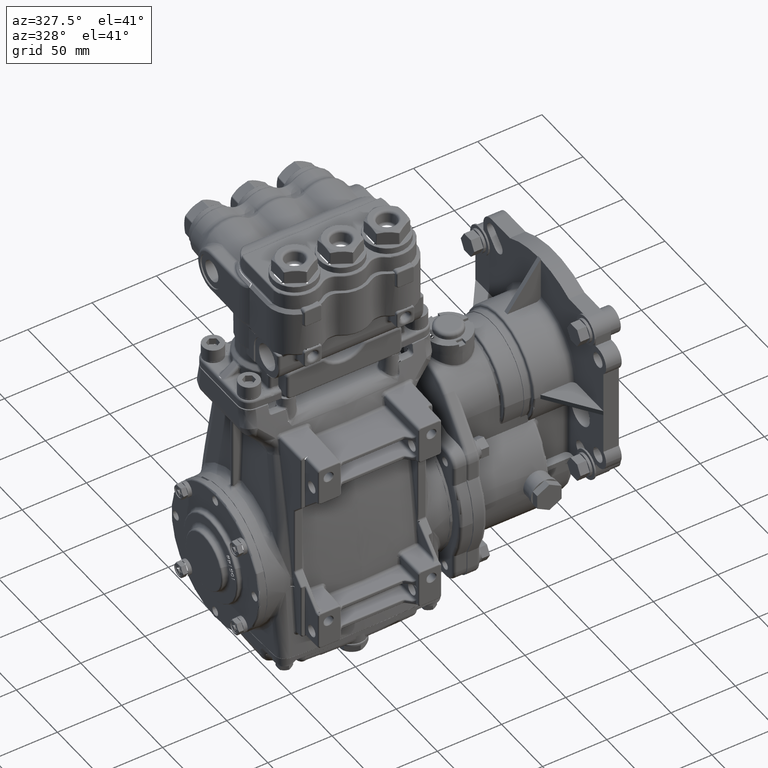
[diagram: clean part render]
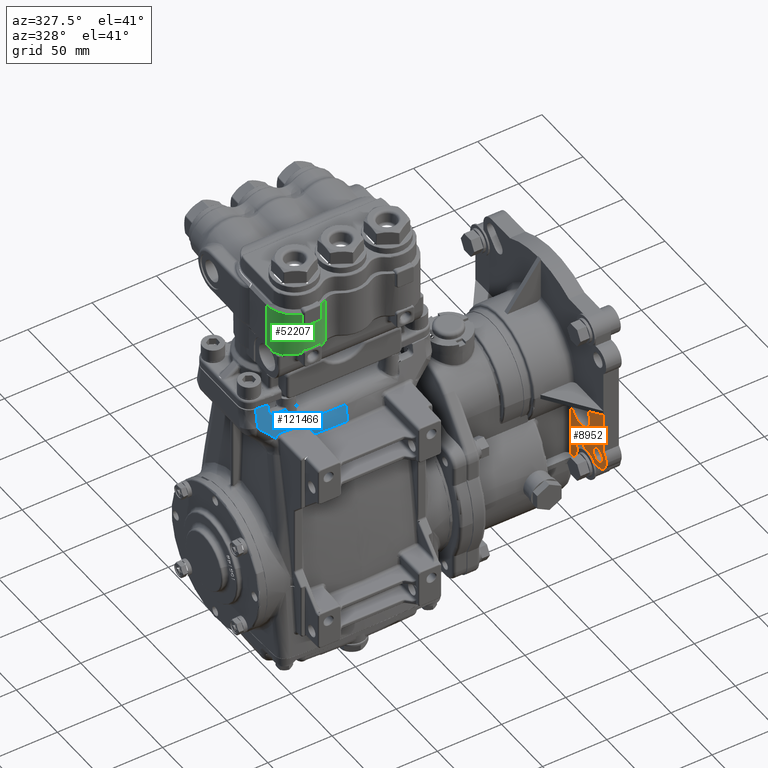
[diagram: same view with three faces highlighted in distinct colors, each labeled with its STEP entity id]
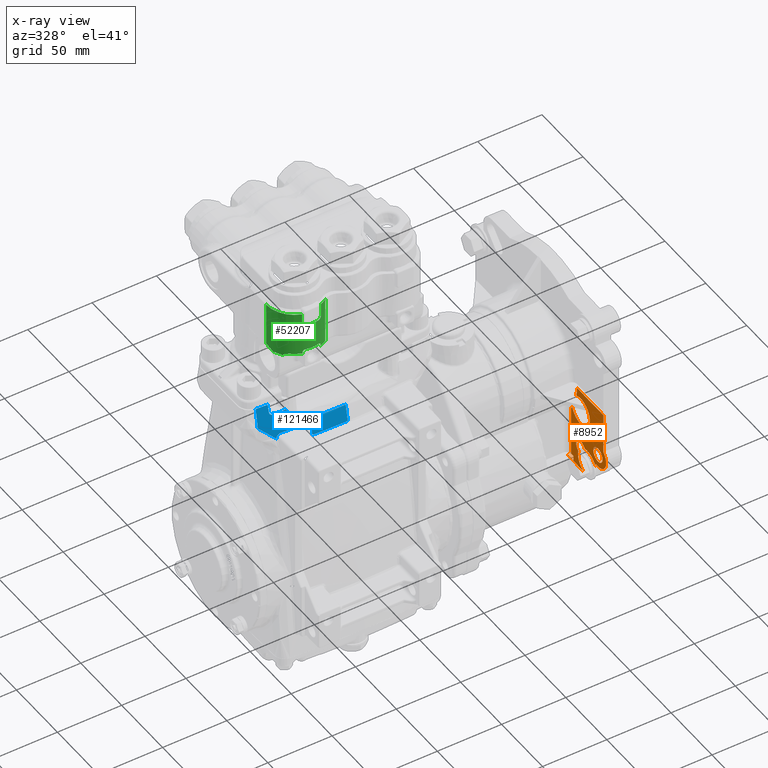
[diagram: x-ray of the same camera — body ghosted, the three highlighted faces saturated]
A machine part, auxiliary view with three faces highlighted in distinct colors.
The next image is the same camera in x-ray (body ghosted, the three faces saturated) — at least one of them is partly hidden behind the body in this view.
Their STEP definitions:

[orange] entity #8952 — the highlighted planar face has unit normal (-1, -0, 0).
#736 = CARTESIAN_POINT ( 'NONE',  ( 6.888275590551181438, -5.629294151333091757E-15, 2.510999999999995680 ) ) ;
#1186 = AXIS2_PLACEMENT_3D ( 'NONE', #47423, #30982, #21121 ) ;
#2518 = CARTESIAN_POINT ( 'NONE',  ( 6.888275590551181438, -2.298097038856285135, 0.2129029611437152081 ) ) ;
#2728 = CARTESIAN_POINT ( 'NONE',  ( 6.888275590551181438, -1.635000000000004450, -0.01600000000001042949 ) ) ;
#3826 = CARTESIAN_POINT ( 'NONE',  ( 6.888275590551181438, -1.860597038856285135, 0.2129029611437151526 ) ) ;
#4824 = DIRECTION ( 'NONE',  ( 0.000000000000000000, 1.000000000000000000, 0.000000000000000000 ) ) ;
#6272 = DIRECTION ( 'NONE',  ( 0.000000000000000000, 1.000000000000000000, 0.000000000000000000 ) ) ;
#6471 = ORIENTED_EDGE ( 'NONE', *, *, #92454, .F. ) ;
#6483 = CARTESIAN_POINT ( 'NONE',  ( 6.888275590551181438, -2.144301313948218546, 0.6778256697738659353 ) ) ;
#7073 = CARTESIAN_POINT ( 'NONE',  ( 6.888275590551181438, -3.209582562299431174, 0.8859999999999820242 ) ) ;
#7217 = ORIENTED_EDGE ( 'NONE', *, *, #52265, .F. ) ;
#7660 = VECTOR ( 'NONE', #91774, 39.37007874015748143 ) ;
#8148 = ORIENTED_EDGE ( 'NONE', *, *, #65137, .F. ) ;
#8275 = CARTESIAN_POINT ( 'NONE',  ( 6.888275590551181438, -5.629294151333091757E-15, 2.510999999999995680 ) ) ;
#8478 = ORIENTED_EDGE ( 'NONE', *, *, #23381, .F. ) ;
#8952 = ADVANCED_FACE ( 'NONE', ( #66028, #104370 ), #9702, .T. ) ;
#8998 = EDGE_CURVE ( 'NONE', #40409, #54891, #96015, .T. ) ;
#9374 = VERTEX_POINT ( 'NONE', #100122 ) ;
#9702 = PLANE ( 'NONE',  #1186 ) ;
#10538 = EDGE_LOOP ( 'NONE', ( #11208, #29247, #90470, #112396, #19702, #40412, #15636, #8148, #101782, #68241, #115154, #111160, #7217, #19542, #69612, #6471, #8478, #22544, #119353, #25776, #32022, #74725, #24311 ) ) ;
#10856 = EDGE_CURVE ( 'NONE', #50293, #32629, #92426, .T. ) ;
#11208 = ORIENTED_EDGE ( 'NONE', *, *, #23114, .F. ) ;
#13096 = LINE ( 'NONE', #13701, #97240 ) ;
#13315 = EDGE_CURVE ( 'NONE', #95637, #58769, #90822, .T. ) ;
#13701 = CARTESIAN_POINT ( 'NONE',  ( 6.888275590551181438, -2.814582562299428936, 0.4909999999999790088 ) ) ;
#14485 = VERTEX_POINT ( 'NONE', #46879 ) ;
#15636 = ORIENTED_EDGE ( 'NONE', *, *, #56022, .F. ) ;
#15857 = AXIS2_PLACEMENT_3D ( 'NONE', #8275, #26829, #54667 ) ;
#17940 = DIRECTION ( 'NONE',  ( 0.000000000000000000, 1.000000000000000000, 0.000000000000000000 ) ) ;
#18910 = VECTOR ( 'NONE', #81997, 39.37007874015748143 ) ;
#19267 = AXIS2_PLACEMENT_3D ( 'NONE', #36698, #45340, #83140 ) ;
#19368 = CARTESIAN_POINT ( 'NONE',  ( 6.888275590551181438, -2.425000000000006484, 1.769999999999995577 ) ) ;
#19409 = CIRCLE ( 'NONE', #76754, 0.2199999999999951994 ) ;
#19542 = ORIENTED_EDGE ( 'NONE', *, *, #116402, .F. ) ;
#19702 = ORIENTED_EDGE ( 'NONE', *, *, #47173, .T. ) ;
#20134 = CARTESIAN_POINT ( 'NONE',  ( 6.888275590551181438, -1.525000000000004574, 1.536076926111595853 ) ) ;
#20466 = CARTESIAN_POINT ( 'NONE',  ( 6.888275590551181438, -2.814582562299428936, 0.8859999999999820242 ) ) ;
#21121 = DIRECTION ( 'NONE',  ( -7.102626545835171524E-19, 1.000000000000000000, 2.775557561562890735E-17 ) ) ;
#21486 = EDGE_LOOP ( 'NONE', ( #89226, #63098 ) ) ;
#22544 = ORIENTED_EDGE ( 'NONE', *, *, #8998, .F. ) ;
#23114 = EDGE_CURVE ( 'NONE', #115668, #36610, #24064, .T. ) ;
#23364 = DIRECTION ( 'NONE',  ( -1.000000000000000000, -7.102626545835169598E-19, 4.324783731851683387E-18 ) ) ;
#23381 = EDGE_CURVE ( 'NONE', #54891, #9374, #122128, .T. ) ;
#23535 = EDGE_CURVE ( 'NONE', #63881, #36610, #94869, .T. ) ;
#24064 = LINE ( 'NONE', #97121, #44374 ) ;
#24221 = AXIS2_PLACEMENT_3D ( 'NONE', #108741, #23364, #4824 ) ;
#24311 = ORIENTED_EDGE ( 'NONE', *, *, #23535, .T. ) ;
#24416 = DIRECTION ( 'NONE',  ( -7.102626545835163820E-19, 1.000000000000000000, 1.948410798152782642E-16 ) ) ;
#24908 = CARTESIAN_POINT ( 'NONE',  ( 6.888275590551181438, -2.814582562299428936, 0.8859999999999820242 ) ) ;
#25209 = DIRECTION ( 'NONE',  ( 7.102626545835199450E-19, -1.000000000000000000, 5.956597188453225509E-16 ) ) ;
#25776 = ORIENTED_EDGE ( 'NONE', *, *, #108456, .T. ) ;
#26656 = CARTESIAN_POINT ( 'NONE',  ( 6.888275590551181438, -2.186259848220069024, 0.6358671355020153459 ) ) ;
#26829 = DIRECTION ( 'NONE',  ( 1.000000000000000000, 7.102626545835169598E-19, -4.324783731851683387E-18 ) ) ;
#26856 = CARTESIAN_POINT ( 'NONE',  ( 6.888275590551181438, -2.695000000000010942, 0.2129029611437152081 ) ) ;
#29180 = DIRECTION ( 'NONE',  ( -1.000000000000000000, -7.102626545835169598E-19, 4.324783731851683387E-18 ) ) ;
#29247 = ORIENTED_EDGE ( 'NONE', *, *, #51693, .T. ) ;
#29634 = CARTESIAN_POINT ( 'NONE',  ( 6.888275590551181438, -5.629294151333091757E-15, 2.510999999999995680 ) ) ;
#29789 = DIRECTION ( 'NONE',  ( 0.000000000000000000, 1.000000000000000000, 0.000000000000000000 ) ) ;
#30383 = DIRECTION ( 'NONE',  ( -1.000000000000000000, -7.102626545835169598E-19, 4.324783731851683387E-18 ) ) ;
#30982 = DIRECTION ( 'NONE',  ( -1.000000000000000000, -7.102626545835172487E-19, 4.324783731851683387E-18 ) ) ;
#31555 = CARTESIAN_POINT ( 'NONE',  ( 6.888275590551181438, -2.814582562299428936, -0.1560000000000100195 ) ) ;
#31855 = AXIS2_PLACEMENT_3D ( 'NONE', #93588, #75018, #112751 ) ;
#32022 = ORIENTED_EDGE ( 'NONE', *, *, #104278, .T. ) ;
#32629 = VERTEX_POINT ( 'NONE', #99656 ) ;
#35508 = VERTEX_POINT ( 'NONE', #111472 ) ;
#35885 = CIRCLE ( 'NONE', #31855, 0.4375000000000001665 ) ;
#35961 = CARTESIAN_POINT ( 'NONE',  ( 6.888275590551181438, -3.075000000000005507, 2.440999999999995840 ) ) ;
#36610 = VERTEX_POINT ( 'NONE', #35961 ) ;
#36698 = CARTESIAN_POINT ( 'NONE',  ( 6.888275590551181438, -1.987500000000006262, 1.769999999999995577 ) ) ;
#36767 = LINE ( 'NONE', #26856, #18910 ) ;
#37029 = CARTESIAN_POINT ( 'NONE',  ( 6.888275590551181438, -3.034582562299428243, 0.8859999999999820242 ) ) ;
#38283 = AXIS2_PLACEMENT_3D ( 'NONE', #29634, #65572, #17940 ) ;
#38968 = EDGE_CURVE ( 'NONE', #58769, #95637, #62978, .T. ) ;
#39285 = AXIS2_PLACEMENT_3D ( 'NONE', #20466, #48286, #106446 ) ;
#40409 = VERTEX_POINT ( 'NONE', #88390 ) ;
#40412 = ORIENTED_EDGE ( 'NONE', *, *, #116737, .T. ) ;
#40841 = DIRECTION ( 'NONE',  ( 0.000000000000000000, 1.000000000000000000, 0.000000000000000000 ) ) ;
#43240 = EDGE_CURVE ( 'NONE', #46787, #82455, #100916, .T. ) ;
#44374 = VECTOR ( 'NONE', #79200, 39.37007874015748143 ) ;
#44627 = VERTEX_POINT ( 'NONE', #98257 ) ;
#44728 = EDGE_CURVE ( 'NONE', #100868, #35508, #90825, .T. ) ;
#45340 = DIRECTION ( 'NONE',  ( 1.000000000000000000, 7.102626545835169598E-19, -4.324783731851683387E-18 ) ) ;
#46787 = VERTEX_POINT ( 'NONE', #79328 ) ;
#46879 = CARTESIAN_POINT ( 'NONE',  ( 6.888275590551181438, -1.375000000000004663, -0.1560000000000100195 ) ) ;
#47173 = EDGE_CURVE ( 'NONE', #32629, #62627, #75213, .T. ) ;
#47423 = CARTESIAN_POINT ( 'NONE',  ( 6.888275590551181438, -2.814582562299428936, 0.8859999999999820242 ) ) ;
#48286 = DIRECTION ( 'NONE',  ( -1.000000000000000000, -7.102626545835169598E-19, 4.324783731851683387E-18 ) ) ;
#50293 = VERTEX_POINT ( 'NONE', #19368 ) ;
#51693 = EDGE_CURVE ( 'NONE', #115668, #84724, #61928, .T. ) ;
#52265 = EDGE_CURVE ( 'NONE', #94226, #35508, #77596, .T. ) ;
#54667 = DIRECTION ( 'NONE',  ( 0.000000000000000000, 1.000000000000000000, 0.000000000000000000 ) ) ;
#54891 = VERTEX_POINT ( 'NONE', #26656 ) ;
#56022 = EDGE_CURVE ( 'NONE', #105186, #101912, #108563, .T. ) ;
#56088 = EDGE_CURVE ( 'NONE', #40409, #73836, #36767, .T. ) ;
#57550 = AXIS2_PLACEMENT_3D ( 'NONE', #736, #29180, #29789 ) ;
#58003 = AXIS2_PLACEMENT_3D ( 'NONE', #2518, #116324, #40841 ) ;
#58769 = VERTEX_POINT ( 'NONE', #104365 ) ;
#59433 = DIRECTION ( 'NONE',  ( 0.000000000000000000, 1.000000000000000000, 0.000000000000000000 ) ) ;
#61790 = CARTESIAN_POINT ( 'NONE',  ( 6.888275590551181438, -2.814582562299428936, 0.8859999999999820242 ) ) ;
#61928 = CIRCLE ( 'NONE', #38283, 1.810000000000000719 ) ;
#62627 = VERTEX_POINT ( 'NONE', #20134 ) ;
#62649 = DIRECTION ( 'NONE',  ( -1.000000000000000000, -7.102626545835169598E-19, 4.324783731851683387E-18 ) ) ;
#62978 = CIRCLE ( 'NONE', #39285, 0.2199999999999992795 ) ;
#63098 = ORIENTED_EDGE ( 'NONE', *, *, #38968, .F. ) ;
#63339 = AXIS2_PLACEMENT_3D ( 'NONE', #24908, #62649, #100408 ) ;
#63574 = CARTESIAN_POINT ( 'NONE',  ( 6.888275590551181438, -1.774015569121611069, 2.151877791672315521 ) ) ;
#63881 = VERTEX_POINT ( 'NONE', #109588 ) ;
#65137 = EDGE_CURVE ( 'NONE', #44627, #105186, #70195, .T. ) ;
#65302 = CIRCLE ( 'NONE', #63339, 0.3950000000000024603 ) ;
#65572 = DIRECTION ( 'NONE',  ( 1.000000000000000000, 7.102626545835169598E-19, -4.324783731851683387E-18 ) ) ;
#66028 = FACE_BOUND ( 'NONE', #21486, .T. ) ;
#66444 = CARTESIAN_POINT ( 'NONE',  ( 6.888275590551181438, -1.525000000000004574, -0.01600000000001042949 ) ) ;
#67349 = CARTESIAN_POINT ( 'NONE',  ( 6.888275590551181438, -1.421683509083515151, -0.1840000000000109326 ) ) ;
#68241 = ORIENTED_EDGE ( 'NONE', *, *, #98951, .F. ) ;
#68868 = DIRECTION ( 'NONE',  ( -4.324783731851680306E-18, 2.775557561562890735E-17, -1.000000000000000000 ) ) ;
#69266 = DIRECTION ( 'NONE',  ( -1.000000000000000000, -7.102626545835169598E-19, 4.324783731851683387E-18 ) ) ;
#69612 = ORIENTED_EDGE ( 'NONE', *, *, #43240, .F. ) ;
#70047 = VECTOR ( 'NONE', #108276, 39.37007874015748143 ) ;
#70195 = LINE ( 'NONE', #106113, #91696 ) ;
#71023 = CARTESIAN_POINT ( 'NONE',  ( 6.888275590551181438, -2.298097038856285135, -0.1840000000000103775 ) ) ;
#71852 = CARTESIAN_POINT ( 'NONE',  ( 6.888275590551181438, -2.142533546995244009, 0.05733946928267863452 ) ) ;
#73836 = VERTEX_POINT ( 'NONE', #113831 ) ;
#74725 = ORIENTED_EDGE ( 'NONE', *, *, #74998, .T. ) ;
#74998 = EDGE_CURVE ( 'NONE', #75781, #63881, #118500, .T. ) ;
#75018 = DIRECTION ( 'NONE',  ( 1.000000000000000000, 7.102626545835169598E-19, -4.324783731851683387E-18 ) ) ;
#75213 = CIRCLE ( 'NONE', #15857, 1.810000000000000719 ) ;
#75781 = VERTEX_POINT ( 'NONE', #7073 ) ;
#76754 = AXIS2_PLACEMENT_3D ( 'NONE', #113098, #112491, #84068 ) ;
#76989 = AXIS2_PLACEMENT_3D ( 'NONE', #61790, #69266, #78578 ) ;
#77449 = CARTESIAN_POINT ( 'NONE',  ( 6.888275590551181438, -2.298097038856285135, 0.2129029611437152081 ) ) ;
#77596 = CIRCLE ( 'NONE', #24221, 0.4374999999999998890 ) ;
#77676 = DIRECTION ( 'NONE',  ( 4.324783731851680306E-18, -2.775557561562890735E-17, 1.000000000000000000 ) ) ;
#78578 = DIRECTION ( 'NONE',  ( 0.000000000000000000, 1.000000000000000000, 0.000000000000000000 ) ) ;
#79200 = DIRECTION ( 'NONE',  ( -1.358821370286296121E-16, -1.000000000000000000, -2.775557561562890735E-17 ) ) ;
#79328 = CARTESIAN_POINT ( 'NONE',  ( 6.888275590551181438, -1.833174330226139626, 0.3666986860517963409 ) ) ;
#81997 = DIRECTION ( 'NONE',  ( 4.324783731851697254E-18, -2.360382532363977982E-14, 1.000000000000000000 ) ) ;
#82455 = VERTEX_POINT ( 'NONE', #91832 ) ;
#83051 = VERTEX_POINT ( 'NONE', #111758 ) ;
#83116 = CARTESIAN_POINT ( 'NONE',  ( 6.888275590551181438, -1.375000000000004663, 0.8859999999999820242 ) ) ;
#83140 = DIRECTION ( 'NONE',  ( 0.000000000000000000, 1.000000000000000000, 0.000000000000000000 ) ) ;
#84068 = DIRECTION ( 'NONE',  ( 0.000000000000000000, 1.000000000000000000, 0.000000000000000000 ) ) ;
#84724 = VERTEX_POINT ( 'NONE', #63574 ) ;
#86826 = CARTESIAN_POINT ( 'NONE',  ( 6.888275590551181438, -3.075000000000005507, 2.510999999999989019 ) ) ;
#86846 = AXIS2_PLACEMENT_3D ( 'NONE', #101529, #91025, #6272 ) ;
#87574 = CARTESIAN_POINT ( 'NONE',  ( 6.888275590551183214, -1.808645902325832777, 2.440999999999995840 ) ) ;
#87944 = VECTOR ( 'NONE', #119710, 39.37007874015748854 ) ;
#88390 = CARTESIAN_POINT ( 'NONE',  ( 6.888275590551181438, -2.695000000000015383, 0.3969526539859972170 ) ) ;
#88594 = DIRECTION ( 'NONE',  ( 7.102626545835565376E-19, -1.000000000000000000, 9.110192102154467729E-15 ) ) ;
#89226 = ORIENTED_EDGE ( 'NONE', *, *, #13315, .F. ) ;
#89295 = VECTOR ( 'NONE', #92267, 39.37007874015748143 ) ;
#90470 = ORIENTED_EDGE ( 'NONE', *, *, #105526, .T. ) ;
#90822 = CIRCLE ( 'NONE', #86846, 0.2199999999999992795 ) ;
#90825 = LINE ( 'NONE', #71023, #117185 ) ;
#91025 = DIRECTION ( 'NONE',  ( -1.000000000000000000, -7.102626545835169598E-19, 4.324783731851683387E-18 ) ) ;
#91242 = CARTESIAN_POINT ( 'NONE',  ( 6.888275590551181438, -2.814582562299428936, -0.01600000000001042949 ) ) ;
#91696 = VECTOR ( 'NONE', #77676, 39.37007874015748143 ) ;
#91774 = DIRECTION ( 'NONE',  ( 4.324783731851680306E-18, -2.775557561562890735E-17, 1.000000000000000000 ) ) ;
#91832 = CARTESIAN_POINT ( 'NONE',  ( 6.888275590551181438, -1.875132864497988772, 0.3247401517799456960 ) ) ;
#92267 = DIRECTION ( 'NONE',  ( -2.555852364478102331E-18, -0.7071067811865319186, -0.7071067811865632269 ) ) ;
#92426 = CIRCLE ( 'NONE', #19267, 0.4375000000000001665 ) ;
#92454 = EDGE_CURVE ( 'NONE', #9374, #46787, #19409, .T. ) ;
#93558 = CARTESIAN_POINT ( 'NONE',  ( 6.888275590551181438, -1.525000000000004574, -0.01600000000001042949 ) ) ;
#93588 = CARTESIAN_POINT ( 'NONE',  ( 6.888275590551181438, -1.987500000000006262, 1.769999999999995577 ) ) ;
#93857 = VECTOR ( 'NONE', #115880, 39.37007874015748143 ) ;
#94226 = VERTEX_POINT ( 'NONE', #3826 ) ;
#94869 = LINE ( 'NONE', #86826, #93857 ) ;
#95637 = VERTEX_POINT ( 'NONE', #37029 ) ;
#96015 = CIRCLE ( 'NONE', #114054, 0.4374999999999998890 ) ;
#97121 = CARTESIAN_POINT ( 'NONE',  ( 6.888275590551181438, -3.075000000000005507, 2.440999999999995840 ) ) ;
#97240 = VECTOR ( 'NONE', #88594, 39.37007874015748143 ) ;
#97788 = VECTOR ( 'NONE', #24416, 39.37007874015748143 ) ;
#98257 = CARTESIAN_POINT ( 'NONE',  ( 6.888275590551181438, -1.635000000000004450, -0.1560000000000100195 ) ) ;
#98951 = EDGE_CURVE ( 'NONE', #83051, #14485, #120816, .T. ) ;
#99656 = CARTESIAN_POINT ( 'NONE',  ( 6.888275590551181438, -1.576121804163173268, 1.621089859344522432 ) ) ;
#100122 = CARTESIAN_POINT ( 'NONE',  ( 6.888275590551181438, -2.144301313948218546, 0.6778256697738659353 ) ) ;
#100408 = DIRECTION ( 'NONE',  ( 0.000000000000000000, 1.000000000000000000, 0.000000000000000000 ) ) ;
#100868 = VERTEX_POINT ( 'NONE', #67349 ) ;
#100916 = LINE ( 'NONE', #71852, #89295 ) ;
#101529 = CARTESIAN_POINT ( 'NONE',  ( 6.888275590551181438, -2.814582562299428936, 0.8859999999999820242 ) ) ;
#101782 = ORIENTED_EDGE ( 'NONE', *, *, #117182, .F. ) ;
#101912 = VERTEX_POINT ( 'NONE', #93558 ) ;
#103521 = VECTOR ( 'NONE', #68868, 39.37007874015748143 ) ;
#104278 = EDGE_CURVE ( 'NONE', #105865, #75781, #65302, .T. ) ;
#104365 = CARTESIAN_POINT ( 'NONE',  ( 6.888275590551181438, -2.594582562299429629, 0.8859999999999820242 ) ) ;
#104370 = FACE_OUTER_BOUND ( 'NONE', #10538, .T. ) ;
#105186 = VERTEX_POINT ( 'NONE', #2728 ) ;
#105526 = EDGE_CURVE ( 'NONE', #84724, #50293, #35885, .T. ) ;
#105637 = EDGE_CURVE ( 'NONE', #83051, #100868, #120846, .T. ) ;
#105865 = VERTEX_POINT ( 'NONE', #106296 ) ;
#106113 = CARTESIAN_POINT ( 'NONE',  ( 6.888275590551181438, -1.635000000000004450, 0.8859999999999820242 ) ) ;
#106296 = CARTESIAN_POINT ( 'NONE',  ( 6.888275590551181438, -2.814582562299428936, 0.4909999999999790088 ) ) ;
#106446 = DIRECTION ( 'NONE',  ( 0.000000000000000000, 1.000000000000000000, 0.000000000000000000 ) ) ;
#107673 = LINE ( 'NONE', #31555, #70047 ) ;
#108276 = DIRECTION ( 'NONE',  ( 7.102626545835171524E-19, -1.000000000000000000, -2.775557561562890735E-17 ) ) ;
#108456 = EDGE_CURVE ( 'NONE', #73836, #105865, #13096, .T. ) ;
#108563 = LINE ( 'NONE', #91242, #97788 ) ;
#108741 = CARTESIAN_POINT ( 'NONE',  ( 6.888275590551181438, -2.298097038856285135, 0.2129029611437152081 ) ) ;
#109588 = CARTESIAN_POINT ( 'NONE',  ( 6.888275590551181438, -3.075000000000007283, 1.182997909321692687 ) ) ;
#111160 = ORIENTED_EDGE ( 'NONE', *, *, #44728, .T. ) ;
#111399 = CIRCLE ( 'NONE', #58003, 0.4374999999999998890 ) ;
#111472 = CARTESIAN_POINT ( 'NONE',  ( 6.888275590551181438, -2.114047346013992801, -0.1840000000000103775 ) ) ;
#111758 = CARTESIAN_POINT ( 'NONE',  ( 6.888275590551181438, -1.375000000000004663, -0.2081145617645576151 ) ) ;
#112396 = ORIENTED_EDGE ( 'NONE', *, *, #10856, .T. ) ;
#112491 = DIRECTION ( 'NONE',  ( -1.000000000000000000, -7.102626545835169598E-19, 4.324783731851683387E-18 ) ) ;
#112751 = DIRECTION ( 'NONE',  ( 0.000000000000000000, 1.000000000000000000, 0.000000000000000000 ) ) ;
#113098 = CARTESIAN_POINT ( 'NONE',  ( 6.888275590551181438, -1.988737822087180529, 0.5222621779128296948 ) ) ;
#113831 = CARTESIAN_POINT ( 'NONE',  ( 6.888275590551181438, -2.695000000000017604, 0.4909999999999778986 ) ) ;
#114054 = AXIS2_PLACEMENT_3D ( 'NONE', #77449, #30383, #59433 ) ;
#114075 = LINE ( 'NONE', #66444, #103521 ) ;
#115154 = ORIENTED_EDGE ( 'NONE', *, *, #105637, .T. ) ;
#115668 = VERTEX_POINT ( 'NONE', #87574 ) ;
#115880 = DIRECTION ( 'NONE',  ( 4.324783731851678765E-18, 1.617933396014789311E-15, 1.000000000000000000 ) ) ;
#116324 = DIRECTION ( 'NONE',  ( -1.000000000000000000, -7.102626545835169598E-19, 4.324783731851683387E-18 ) ) ;
#116402 = EDGE_CURVE ( 'NONE', #82455, #94226, #111399, .T. ) ;
#116737 = EDGE_CURVE ( 'NONE', #62627, #101912, #114075, .T. ) ;
#117182 = EDGE_CURVE ( 'NONE', #14485, #44627, #107673, .T. ) ;
#117185 = VECTOR ( 'NONE', #25209, 39.37007874015748143 ) ;
#118500 = CIRCLE ( 'NONE', #76989, 0.3950000000000024603 ) ;
#119353 = ORIENTED_EDGE ( 'NONE', *, *, #56088, .T. ) ;
#119710 = DIRECTION ( 'NONE',  ( 2.555852364478035308E-18, 0.7071067811865450192, 0.7071067811865500152 ) ) ;
#120816 = LINE ( 'NONE', #83116, #7660 ) ;
#120846 = CIRCLE ( 'NONE', #57550, 3.047000000000005926 ) ;
#122128 = LINE ( 'NONE', #6483, #87944 ) ;

[blue] entity #121466 — the highlighted face is a freeform B-spline surface patch.
#118 = VERTEX_POINT ( 'NONE', #89290 ) ;
#264 = CARTESIAN_POINT ( 'NONE',  ( -2.225299510298643479, -1.240203159225248930, 5.708659878825060652 ) ) ;
#428 = CARTESIAN_POINT ( 'NONE',  ( -1.722763757636296633, -1.342090532890852117, 5.356247719112758432 ) ) ;
#726 = CARTESIAN_POINT ( 'NONE',  ( -2.105718740610707407, -1.316990519298782747, 5.378053934162385197 ) ) ;
#869 = CARTESIAN_POINT ( 'NONE',  ( -2.217687854067777131, -1.287471127560731343, 5.487445985151845562 ) ) ;
#925 = CARTESIAN_POINT ( 'NONE',  ( -2.708159283295321185, -1.723791484228669901, 3.127925920230772761 ) ) ;
#1122 = CARTESIAN_POINT ( 'NONE',  ( -1.080195572947305394, -1.518222662354437258, 4.667661603721832364 ) ) ;
#1273 = CARTESIAN_POINT ( 'NONE',  ( -1.681549055440303420, -1.428552946898761222, 4.961121021607085346 ) ) ;
#1503 = CARTESIAN_POINT ( 'NONE',  ( -1.747981815849878329, -1.334178343351362095, 5.386980903244986685 ) ) ;
#1741 = CARTESIAN_POINT ( 'NONE',  ( -1.077261521428881652, -1.520411852318828361, 4.657784040469648446 ) ) ;
#2568 = CARTESIAN_POINT ( 'NONE',  ( -1.721600411979224754, -1.396638761318249822, 5.102518274922984709 ) ) ;
#2571 = EDGE_CURVE ( 'NONE', #99950, #70046, #72685, .T. ) ;
#2717 = CARTESIAN_POINT ( 'NONE',  ( -2.218680148336985791, -1.281363122525040588, 5.516273619278432960 ) ) ;
#3598 = CARTESIAN_POINT ( 'NONE',  ( -2.427291514755221424, -1.376123651622198185, 4.976395197955953087 ) ) ;
#4295 = CARTESIAN_POINT ( 'NONE',  ( -1.751987209595272432, -1.334107893090161534, 5.386413663578317745 ) ) ;
#4795 = VERTEX_POINT ( 'NONE', #87856 ) ;
#4803 = CARTESIAN_POINT ( 'NONE',  ( -2.574975106018726922, -1.336104207299929847, 5.123366275014468840 ) ) ;
#5244 = CARTESIAN_POINT ( 'NONE',  ( -1.710141671066009117, -1.413445833383625949, 5.025765057855138274 ) ) ;
#5353 = CARTESIAN_POINT ( 'NONE',  ( 2.841641326625985009, -1.202961639721772391, 5.708661417322835163 ) ) ;
#5407 = EDGE_CURVE ( 'NONE', #47668, #108143, #88215, .T. ) ;
#5731 = ORIENTED_EDGE ( 'NONE', *, *, #59311, .F. ) ;
#5961 = CARTESIAN_POINT ( 'NONE',  ( 2.324091733874597221, -1.235065584125857319, 5.708661417322855591 ) ) ;
#6582 = CARTESIAN_POINT ( 'NONE',  ( -2.240980235268056564, -2.321187910974374269, -2.165354330708661124 ) ) ;
#7079 = CARTESIAN_POINT ( 'NONE',  ( -1.952367831054959035, -1.449958732757505420, 4.776699653441751181 ) ) ;
#7204 = CARTESIAN_POINT ( 'NONE',  ( 0.1450234440065840680, -2.300768595909192804, 0.4897784465330164427 ) ) ;
#7687 = CARTESIAN_POINT ( 'NONE',  ( -2.063845724899824763, -1.451430142022201109, 4.730619112013592087 ) ) ;
#7801 = CARTESIAN_POINT ( 'NONE',  ( -0.4873200862093268193, -1.924545779200158346, 3.127925920230743451 ) ) ;
#7985 = ORIENTED_EDGE ( 'NONE', *, *, #19235, .F. ) ;
#8387 = CARTESIAN_POINT ( 'NONE',  ( 1.694981807724703637, -1.848142482010726173, 3.127925920230747892 ) ) ;
#8986 = CARTESIAN_POINT ( 'NONE',  ( -0.1019719231317475217, -1.931427949591510096, 3.127925920230758550 ) ) ;
#9531 = VERTEX_POINT ( 'NONE', #74100 ) ;
#9586 = CARTESIAN_POINT ( 'NONE',  ( -2.476352911878942020, -2.114609130722289176, 0.4897784465330224379 ) ) ;
#9864 = CARTESIAN_POINT ( 'NONE',  ( -2.161939511325656316, -1.311632795425479614, 5.387744011701573577 ) ) ;
#9889 = CARTESIAN_POINT ( 'NONE',  ( -1.073092921287555068, -1.577856869924249450, 4.380521288988022732 ) ) ;
#10008 = CARTESIAN_POINT ( 'NONE',  ( -1.722763757636296633, -1.342090532890852117, 5.356247719112758432 ) ) ;
#10181 = CARTESIAN_POINT ( 'NONE',  ( -2.729947521028413426, -1.210496205736398601, 5.708661417322848486 ) ) ;
#10771 = ORIENTED_EDGE ( 'NONE', *, *, #62645, .F. ) ;
#10795 = CARTESIAN_POINT ( 'NONE',  ( -2.686370785910845438, -2.084068835673706488, 0.4897784465330251580 ) ) ;
#10993 = CARTESIAN_POINT ( 'NONE',  ( -1.092555356292821633, -1.511870490031021363, 4.695565475397231125 ) ) ;
#11215 = CARTESIAN_POINT ( 'NONE',  ( -2.092617560757028095, -1.317753261323262759, 5.378059757535799790 ) ) ;
#11551 = B_SPLINE_CURVE_WITH_KNOTS ( 'NONE', 3,
 ( #49837, #40593, #116076, #57895 ),
 .UNSPECIFIED., .F., .F.,
 ( 4, 4 ),
 ( 7.880842254786102953E-19, 0.02726535390388513946 ),
 .UNSPECIFIED. ) ;
#12358 = CARTESIAN_POINT ( 'NONE',  ( -1.635839530083464943, -1.447615670901228446, 4.881616434828091045 ) ) ;
#12695 = ORIENTED_EDGE ( 'NONE', *, *, #114371, .F. ) ;
#13442 = VERTEX_POINT ( 'NONE', #67430 ) ;
#14080 = EDGE_CURVE ( 'NONE', #70046, #43412, #50876, .T. ) ;
#14237 = ORIENTED_EDGE ( 'NONE', *, *, #25522, .F. ) ;
#15352 = ORIENTED_EDGE ( 'NONE', *, *, #42079, .F. ) ;
#15846 = CARTESIAN_POINT ( 'NONE',  ( 2.132997294791505460, -1.245100427256945474, 5.708661417322859144 ) ) ;
#16380 = ORIENTED_EDGE ( 'NONE', *, *, #62210, .F. ) ;
#16465 = CARTESIAN_POINT ( 'NONE',  ( 1.741295670112182004, -1.263397575016607766, 5.708661417322819176 ) ) ;
#16479 = CARTESIAN_POINT ( 'NONE',  ( -2.580421327975271240, -1.219814287179225243, 5.708661417322838716 ) ) ;
#16964 = CARTESIAN_POINT ( 'NONE',  ( -2.020938564557484884, -1.448370912080410688, 4.761333360718126073 ) ) ;
#17084 = CARTESIAN_POINT ( 'NONE',  ( 1.424768798695139616, -1.872199753906887310, 3.127925920230765211 ) ) ;
#17452 = EDGE_CURVE ( 'NONE', #4795, #50109, #85725, .T. ) ;
#17674 = CARTESIAN_POINT ( 'NONE',  ( -1.161614335099258266, -1.892574789840514082, 3.127925920230770540 ) ) ;
#18275 = CARTESIAN_POINT ( 'NONE',  ( -1.866877324122247384, -2.345940473350990541, -2.165354330708661124 ) ) ;
#18845 = CARTESIAN_POINT ( 'NONE',  ( -1.733620939072123557, -1.336310429804975497, 5.380374750228522629 ) ) ;
#18888 = CARTESIAN_POINT ( 'NONE',  ( -0.4802293617885408650, -2.293642939336622888, 0.4897784465330087822 ) ) ;
#19235 = EDGE_CURVE ( 'NONE', #50109, #36765, #73679, .T. ) ;
#19436 = CARTESIAN_POINT ( 'NONE',  ( -2.218184043943017159, -1.284420000957795516, 5.501860411293184150 ) ) ;
#20046 = CARTESIAN_POINT ( 'NONE',  ( -2.225299536755477092, -1.240202993220940852, 5.708660648073943911 ) ) ;
#20387 = CARTESIAN_POINT ( 'NONE',  ( -2.118819494832499650, -1.316220569315483369, 5.378048052391195100 ) ) ;
#21020 = CARTESIAN_POINT ( 'NONE',  ( 1.943646624093664954, -1.254362676313991454, 5.708661417322839604 ) ) ;
#21497 = CARTESIAN_POINT ( 'NONE',  ( -1.087829918295206921, -1.513963123448836878, 4.686501579875510970 ) ) ;
#21928 = CARTESIAN_POINT ( 'NONE',  ( -1.952367831054959035, -1.449958732757505420, 4.776699653441751181 ) ) ;
#22568 = CARTESIAN_POINT ( 'NONE',  ( -1.708654828045137908, -1.414479671960221285, 5.021227552740171518 ) ) ;
#22858 = ORIENTED_EDGE ( 'NONE', *, *, #96190, .F. ) ;
#24504 = CARTESIAN_POINT ( 'NONE',  ( 2.487087237515684279, -1.755350102494639408, 3.127925920230762102 ) ) ;
#24626 = VERTEX_POINT ( 'NONE', #27914 ) ;
#25522 = EDGE_CURVE ( 'NONE', #36765, #99950, #61828, .T. ) ;
#25545 = VERTEX_POINT ( 'NONE', #2568 ) ;
#25716 = CARTESIAN_POINT ( 'NONE',  ( -2.369125755900590491, -1.232386614232148236, 5.708661417322822729 ) ) ;
#26207 = CARTESIAN_POINT ( 'NONE',  ( -2.012909048595398431, -1.448208099751369549, 4.764942719449853037 ) ) ;
#26329 = CARTESIAN_POINT ( 'NONE',  ( -0.2434275427088367916, -1.298707510032790280, 5.708661417322822729 ) ) ;
#26552 = CARTESIAN_POINT ( 'NONE',  ( -1.072586018474553704, -1.540557774957428183, 4.562259323787783316 ) ) ;
#26632 = EDGE_CURVE ( 'NONE', #118, #41553, #27769, .T. ) ;
#26940 = CARTESIAN_POINT ( 'NONE',  ( -1.438329920831149300, -2.368889522099581146, -2.165354330708661124 ) ) ;
#26990 = CARTESIAN_POINT ( 'NONE',  ( -2.580421327975271240, -1.219814287179225243, 5.708661417322838716 ) ) ;
#27253 = EDGE_CURVE ( 'NONE', #70675, #118, #30597, .T. ) ;
#27325 = CARTESIAN_POINT ( 'NONE',  ( -1.721480612469855176, -1.401838593400852151, 5.077995716201278320 ) ) ;
#27501 = CARTESIAN_POINT ( 'NONE',  ( -1.736812986606227849, -1.335636033210475082, 5.382763689904396465 ) ) ;
#27540 = CARTESIAN_POINT ( 'NONE',  ( 0.1450532115828236657, -2.401574803149604254, -2.165354330708661568 ) ) ;
#27769 = B_SPLINE_CURVE_WITH_KNOTS ( 'NONE', 3,
 ( #37627, #68534, #95754, #1741, #1122, #21497, #10993, #49930, #96979, #48730, #115552, #66098, #38849, #95147, #56777, #49327, #87107, #66704 ),
 .UNSPECIFIED., .F., .F.,
 ( 4, 2, 2, 2, 2, 2, 2, 2, 4 ),
 ( 0.000000000000000000, 0.0007965545123860077450, 0.001593109024772015490, 0.002389663537158023127, 0.003186218049544030980, 0.003982772561930038833, 0.004779327074316046253, 0.005575881586702054540, 0.006372436099088061960 ),
 .UNSPECIFIED. ) ;
#27914 = CARTESIAN_POINT ( 'NONE',  ( 5.353948352643644109E-17, -1.600492787119488725, 4.379707716610888646 ) ) ;
#27917 = CARTESIAN_POINT ( 'NONE',  ( -1.717481129432714804, -1.407104387990174788, 5.054039321377365113 ) ) ;
#28139 = CARTESIAN_POINT ( 'NONE',  ( -1.915486056463429509, -2.186527716124487153, 0.4897784465330153325 ) ) ;
#28371 = VERTEX_POINT ( 'NONE', #90577 ) ;
#28703 = CARTESIAN_POINT ( 'NONE',  ( -2.223976436569616411, -1.248489896371614449, 5.670193728004660372 ) ) ;
#28763 = CARTESIAN_POINT ( 'NONE',  ( -2.913385826771654141, -2.265344068576858216, -2.165354330708661124 ) ) ;
#29648 = CARTESIAN_POINT ( 'NONE',  ( -2.131589148291261004, -1.315337084983758453, 5.378668450234617815 ) ) ;
#29928 = CARTESIAN_POINT ( 'NONE',  ( -1.726294129361461094, -1.338649076078402667, 5.371263982266717640 ) ) ;
#30263 = CARTESIAN_POINT ( 'NONE',  ( -1.814286184004190394, -1.332820085805407784, 5.378174502459382111 ) ) ;
#30272 = CARTESIAN_POINT ( 'NONE',  ( 1.895214259565355164, -1.827571154474286530, 3.127925920230762102 ) ) ;
#30597 = B_SPLINE_CURVE_WITH_KNOTS ( 'NONE', 3,
 ( #35843, #43281, #111339, #73607, #26552, #102067, #55006 ),
 .UNSPECIFIED., .F., .F.,
 ( 4, 3, 4 ),
 ( 2.860979249076398407E-17, 0.004000007109623737039, 0.006137128290096965921 ),
 .UNSPECIFIED. ) ;
#31177 = CARTESIAN_POINT ( 'NONE',  ( -2.546430131488119031, -1.222062046991427398, 5.708661417322842269 ) ) ;
#31224 = CARTESIAN_POINT ( 'NONE',  ( -1.706872822841960513, -1.415508902010688130, 5.016785960608056705 ) ) ;
#31781 = CARTESIAN_POINT ( 'NONE',  ( -1.711389026845987926, -1.466112214783019452, 4.776074036411200652 ) ) ;
#31983 = B_SPLINE_CURVE_WITH_KNOTS ( 'NONE', 3,
 ( #65094, #27325, #27917, #105256 ),
 .UNSPECIFIED., .F., .F.,
 ( 4, 4 ),
 ( 0.000000000000000000, 0.001893212023232316264 ),
 .UNSPECIFIED. ) ;
#32347 = CARTESIAN_POINT ( 'NONE',  ( 9.581174933279260502E-09, -1.532602765210235862, 4.700192344501700425 ) ) ;
#33774 = CARTESIAN_POINT ( 'NONE',  ( 2.663295530942337397, -2.288034568519342837, -2.165354330708661568 ) ) ;
#34270 = CARTESIAN_POINT ( 'NONE',  ( -2.584536379679437612, -1.294080185405673600, 5.337251401134090578 ) ) ;
#34391 = CARTESIAN_POINT ( 'NONE',  ( 2.037265628463426737, -2.172062645620671084, 0.4897784465330257131 ) ) ;
#35011 = CARTESIAN_POINT ( 'NONE',  ( 0.7853088048963520196, -1.913828282296069494, 3.127925920230730128 ) ) ;
#35493 = CARTESIAN_POINT ( 'NONE',  ( -1.970108780992996023, -1.448916258621498754, 4.775992038015378860 ) ) ;
#35495 = CARTESIAN_POINT ( 'NONE',  ( -2.580421327975271240, -1.219814287179225243, 5.708661417322838716 ) ) ;
#35620 = CARTESIAN_POINT ( 'NONE',  ( -0.2402441229366550357, -2.299342540392105505, 0.4897784465330115022 ) ) ;
#35843 = CARTESIAN_POINT ( 'NONE',  ( -1.073092921287555068, -1.577856869924249450, 4.380521288988022732 ) ) ;
#35969 = CARTESIAN_POINT ( 'NONE',  ( -1.620100908794973149, -1.453906116151964634, 4.855422552802820313 ) ) ;
#35979 = VERTEX_POINT ( 'NONE', #16479 ) ;
#36113 = CARTESIAN_POINT ( 'NONE',  ( -2.093934674572589749, -1.457693663488794034, 4.687614378569230134 ) ) ;
#36232 = CARTESIAN_POINT ( 'NONE',  ( -0.7927816049644672569, -1.913850617605292292, 3.127925920230765211 ) ) ;
#36736 = CARTESIAN_POINT ( 'NONE',  ( -1.961275411743053754, -1.449361632755252982, 4.776722778853954132 ) ) ;
#36765 = VERTEX_POINT ( 'NONE', #105201 ) ;
#36851 = CARTESIAN_POINT ( 'NONE',  ( 1.345329668388606015, -2.372960332906651093, -2.165354330708661568 ) ) ;
#37034 = CARTESIAN_POINT ( 'NONE',  ( -2.131857811152471527, -1.455898729892387111, 4.682448221176986891 ) ) ;
#37131 = CARTESIAN_POINT ( 'NONE',  ( -2.216757264246910886, -1.293181653353143723, 5.460414511165049944 ) ) ;
#37452 = CARTESIAN_POINT ( 'NONE',  ( -2.083726086542785794, -2.166614530041787390, 0.4897784465330164427 ) ) ;
#37502 = CARTESIAN_POINT ( 'NONE',  ( -2.369125755900590491, -1.232386614232148236, 5.708661417322822729 ) ) ;
#37627 = CARTESIAN_POINT ( 'NONE',  ( -1.072431235905899394, -1.529109700601100519, 4.617170957768486517 ) ) ;
#37729 = CARTESIAN_POINT ( 'NONE',  ( -2.196056571917938349, -1.303879678970658818, 5.415091434413103144 ) ) ;
#37999 = CARTESIAN_POINT ( 'NONE',  ( -2.224417520747809185, -1.245732254816966922, 5.683016498614675172 ) ) ;
#38385 = B_SPLINE_CURVE_WITH_KNOTS ( 'NONE', 3,
 ( #67085, #1503, #104820, #27501, #18845, #114726, #29928, #65273, #67706, #83867 ),
 .UNSPECIFIED., .F., .F.,
 ( 4, 2, 2, 2, 4 ),
 ( 0.000000000000000000, 0.0003027454738951044079, 0.0006054909477902088158, 0.0009082364216853131694, 0.001210981895580417632 ),
 .UNSPECIFIED. ) ;
#38666 = CARTESIAN_POINT ( 'NONE',  ( -2.913385826771652809, -1.197969208711458178, 5.708661417322836940 ) ) ;
#38720 = CARTESIAN_POINT ( 'NONE',  ( -2.556161274978753895, -1.221313719588602575, 5.708661417322839604 ) ) ;
#38849 = CARTESIAN_POINT ( 'NONE',  ( -1.158646098014652015, -1.495931476948292316, 4.758705619629515660 ) ) ;
#38945 = CARTESIAN_POINT ( 'NONE',  ( -2.213871687814412237, -1.295948715829844167, 5.447984567152726498 ) ) ;
#39067 = CARTESIAN_POINT ( 'NONE',  ( -2.079515967812845201, -1.318508806050442184, 5.378065523121180469 ) ) ;
#39570 = CARTESIAN_POINT ( 'NONE',  ( 1.798349607840901365, -2.349958156103969742, -2.165354330708661568 ) ) ;
#39709 = B_SPLINE_CURVE_WITH_KNOTS ( 'NONE', 3,
 ( #10008, #102867, #94194, #75639 ),
 .UNSPECIFIED., .F., .F.,
 ( 4, 4 ),
 ( 0.000000000000000000, 0.006592048580543245079 ),
 .UNSPECIFIED. ) ;
#39870 = CARTESIAN_POINT ( 'NONE',  ( -2.848460234453432882, -2.059014184365170586, 0.4897784465330218828 ) ) ;
#39877 = CARTESIAN_POINT ( 'NONE',  ( -1.228927318074536146, -1.489561126532687352, 4.775157596980935004 ) ) ;
#40458 = CARTESIAN_POINT ( 'NONE',  ( -2.578672087457833495, -1.335102395645723750, 5.127045419998160547 ) ) ;
#40593 = CARTESIAN_POINT ( 'NONE',  ( -0.3578149186057127951, -1.600492783429322774, 4.379707716609932078 ) ) ;
#40821 = CARTESIAN_POINT ( 'NONE',  ( -1.620100908794973149, -1.453906116151964634, 4.855422552802820313 ) ) ;
#41553 = VERTEX_POINT ( 'NONE', #74992 ) ;
#41585 = ORIENTED_EDGE ( 'NONE', *, *, #99657, .F. ) ;
#42079 = EDGE_CURVE ( 'NONE', #24626, #70675, #11551, .T. ) ;
#43281 = CARTESIAN_POINT ( 'NONE',  ( -1.072950483581206926, -1.567414980036824446, 4.431965603632755268 ) ) ;
#43412 = VERTEX_POINT ( 'NONE', #4295 ) ;
#44025 = CARTESIAN_POINT ( 'NONE',  ( -1.350326807458474887, -1.468162027508103096, 4.856919799504730406 ) ) ;
#44093 = EDGE_CURVE ( 'NONE', #25545, #9531, #31983, .T. ) ;
#44287 = CARTESIAN_POINT ( 'NONE',  ( -2.283695148368135364, -2.140796000541713706, 0.4897784465330153325 ) ) ;
#44892 = CARTESIAN_POINT ( 'NONE',  ( -1.782922231577828143, -1.333694683007381698, 5.381355294301616077 ) ) ;
#44904 = CARTESIAN_POINT ( 'NONE',  ( 0.1449627675236093149, -1.299212598425193654, 5.708661417322835163 ) ) ;
#45358 = EDGE_CURVE ( 'NONE', #106622, #24626, #105355, .T. ) ;
#45381 = CARTESIAN_POINT ( 'NONE',  ( -2.075517072304949195, -1.453196763443852291, 4.717388431576400087 ) ) ;
#45506 = CARTESIAN_POINT ( 'NONE',  ( 0.1449928827331219139, -1.931427949591510096, 3.127925920230758550 ) ) ;
#46106 = CARTESIAN_POINT ( 'NONE',  ( -1.480950586178898964, -2.231805334558659037, 0.4897784465330071724 ) ) ;
#46292 = CARTESIAN_POINT ( 'NONE',  ( -2.113719599238204960, -1.460854016431075264, 4.663919834022189015 ) ) ;
#46711 = CARTESIAN_POINT ( 'NONE',  ( 1.385049581091524207, -2.240167768303173546, 0.4897784465330202730 ) ) ;
#47046 = CARTESIAN_POINT ( 'NONE',  ( -1.706872822841960513, -1.415508902010688130, 5.016785960608056705 ) ) ;
#47312 = CARTESIAN_POINT ( 'NONE',  ( -2.862114397419989853, -1.201536995417320064, 5.708661417322835163 ) ) ;
#47668 = VERTEX_POINT ( 'NONE', #79697 ) ;
#47971 = CARTESIAN_POINT ( 'NONE',  ( -2.274074093447811418, -1.237607028996281056, 5.708661417322824505 ) ) ;
#48213 = CARTESIAN_POINT ( 'NONE',  ( -1.782922231577828143, -1.333694683007381698, 5.381355294301616077 ) ) ;
#48333 = CARTESIAN_POINT ( 'NONE',  ( -2.027109477794701409, -1.321530991777924990, 5.378088585514736231 ) ) ;
#48537 = CARTESIAN_POINT ( 'NONE',  ( -2.664582750533178945, -2.288033759751159746, -2.165354330708661124 ) ) ;
#48730 = CARTESIAN_POINT ( 'NONE',  ( -1.124572904729152611, -1.502208888837055278, 4.735418960371210240 ) ) ;
#48827 = CARTESIAN_POINT ( 'NONE',  ( -2.217191579026701387, -1.290516498742154905, 5.473030347281832242 ) ) ;
#49327 = CARTESIAN_POINT ( 'NONE',  ( -1.208076077040557861, -1.490664904009200598, 4.774070189874327852 ) ) ;
#49837 = CARTESIAN_POINT ( 'NONE',  ( 5.353948352643644109E-17, -1.600492787119488725, 4.379707716610888646 ) ) ;
#49930 = CARTESIAN_POINT ( 'NONE',  ( -1.103849926172684626, -1.507790552553654351, 4.712830274811794062 ) ) ;
#50044 = CARTESIAN_POINT ( 'NONE',  ( 2.913386025391116796, -2.048762232609160350, 0.4897784465330197179 ) ) ;
#50109 = VERTEX_POINT ( 'NONE', #101720 ) ;
#50322 = CARTESIAN_POINT ( 'NONE',  ( -2.586414713598422566, -1.330825672831741580, 5.146055740934847300 ) ) ;
#50876 = B_SPLINE_CURVE_WITH_KNOTS ( 'NONE', 3,
 ( #88759, #98634, #98027, #119665 ),
 .UNSPECIFIED., .F., .F.,
 ( 4, 4 ),
 ( 0.000000000000000000, 0.0007962539155345377435 ),
 .UNSPECIFIED. ) ;
#51154 = B_SPLINE_CURVE_WITH_KNOTS ( 'NONE', 3,
 ( #87507, #40458, #68920, #106652, #50322, #88124 ),
 .UNSPECIFIED., .F., .F.,
 ( 4, 2, 4 ),
 ( 0.000000000000000000, 0.0003986968777286324303, 0.0007973937554572648606 ),
 .UNSPECIFIED. ) ;
#51607 = CARTESIAN_POINT ( 'NONE',  ( -1.711343548344327337, -1.412407386300848389, 5.030395126341211665 ) ) ;
#52218 = B_SPLINE_CURVE_WITH_KNOTS ( 'NONE', 3,
 ( #74175, #46292, #82282, #37034 ),
 .UNSPECIFIED., .F., .F.,
 ( 4, 4 ),
 ( 0.01504984625997447985, 0.01605549334767786968 ),
 .UNSPECIFIED. ) ;
#52948 = CARTESIAN_POINT ( 'NONE',  ( 2.727940840439589287, -1.210589729325568742, 5.708661417322833387 ) ) ;
#54174 = CARTESIAN_POINT ( 'NONE',  ( 1.150346110494639085, -1.283976514928853341, 5.708661417322789866 ) ) ;
#54394 = ORIENTED_EDGE ( 'NONE', *, *, #73422, .F. ) ;
#54666 = CARTESIAN_POINT ( 'NONE',  ( -2.036426301086296853, -1.449003076438874826, 4.752711269429640950 ) ) ;
#54781 = CARTESIAN_POINT ( 'NONE',  ( 0.3973269798802264163, -2.297068369690841383, 0.4897784465330322634 ) ) ;
#54858 = ORIENTED_EDGE ( 'NONE', *, *, #27253, .F. ) ;
#55006 = CARTESIAN_POINT ( 'NONE',  ( -1.072431235905899394, -1.529109700601100519, 4.617170957768486517 ) ) ;
#55045 = B_SPLINE_CURVE_WITH_KNOTS ( 'NONE', 3,
 ( #35969, #44025, #81825, #105822, #85432, #113280 ),
 .UNSPECIFIED., .F., .F.,
 ( 4, 2, 4 ),
 ( 0.002095153710632045169, 0.02267970435462861659, 0.04326425499862518453 ),
 .UNSPECIFIED. ) ;
#55382 = CARTESIAN_POINT ( 'NONE',  ( 1.648668314213679542, -2.215500870424770952, 0.4897784465330115022 ) ) ;
#55990 = CARTESIAN_POINT ( 'NONE',  ( -0.2386529819870311930, -2.400899943846322770, -2.165354330708661568 ) ) ;
#56277 = CARTESIAN_POINT ( 'NONE',  ( -2.150185035819120571, -1.313337084266614108, 5.382946699796173462 ) ) ;
#56596 = CARTESIAN_POINT ( 'NONE',  ( -2.012704400865600096, -1.251118121441595177, 5.708661417322824505 ) ) ;
#56777 = CARTESIAN_POINT ( 'NONE',  ( -1.187791802669428964, -1.492376998671421706, 4.769927121275411963 ) ) ;
#57895 = CARTESIAN_POINT ( 'NONE',  ( -1.073092921287555068, -1.577856869924249450, 4.380521288988022732 ) ) ;
#58342 = EDGE_CURVE ( 'NONE', #43412, #58890, #38385, .T. ) ;
#58716 = CARTESIAN_POINT ( 'NONE',  ( 2.523490070267367269, -1.223445930611730459, 5.708661417322837828 ) ) ;
#58890 = VERTEX_POINT ( 'NONE', #428 ) ;
#59311 = EDGE_CURVE ( 'NONE', #28371, #94227, #51154, .T. ) ;
#59432 = CARTESIAN_POINT ( 'NONE',  ( -1.922276981058850698, -1.327230367781236042, 5.378131974289340533 ) ) ;
#60144 = VERTEX_POINT ( 'NONE', #111087 ) ;
#61610 = CARTESIAN_POINT ( 'NONE',  ( 2.822533585408711243, -2.063108027997043958, 0.4897784465330197179 ) ) ;
#61828 = B_SPLINE_CURVE_WITH_KNOTS ( 'NONE', 3,
 ( #115783, #726, #11215, #39067, #48333, #67540, #59432, #106489, #95373, #104664 ),
 .UNSPECIFIED., .F., .F.,
 ( 4, 3, 3, 4 ),
 ( 1.387778780781445676E-17, 0.001000000151212620788, 0.005000018806650715145, 0.007746659996505261478 ),
 .UNSPECIFIED. ) ;
#62210 = EDGE_CURVE ( 'NONE', #67425, #13442, #52218, .T. ) ;
#62245 = CARTESIAN_POINT ( 'NONE',  ( 2.234415192802542194, -2.147607685230842556, 0.4897784465330246584 ) ) ;
#62327 = CARTESIAN_POINT ( 'NONE',  ( -2.105072701590586792, -1.463353995759773651, 4.654363746525441492 ) ) ;
#62480 = ORIENTED_EDGE ( 'NONE', *, *, #65245, .F. ) ;
#62645 = EDGE_CURVE ( 'NONE', #9531, #47668, #118425, .T. ) ;
#62856 = CARTESIAN_POINT ( 'NONE',  ( 2.279253307875170886, -1.782954428840536565, 3.127925920230772761 ) ) ;
#63464 = CARTESIAN_POINT ( 'NONE',  ( 1.602354164347848275, -2.360792373919398557, -2.165354330708661568 ) ) ;
#64088 = CARTESIAN_POINT ( 'NONE',  ( -0.7760523888099777334, -2.282663781206307085, 0.4897784465330197179 ) ) ;
#64548 = EDGE_LOOP ( 'NONE', ( #10771, #117039, #73330, #73662, #67987, #77602, #14237, #7985, #118658, #121796, #62480, #5731, #22858, #16380, #12695, #54394, #99314, #54858, #15352, #69661, #41585, #87538 ) ) ;
#64595 = CARTESIAN_POINT ( 'NONE',  ( -2.043835400069852870, -1.449474177362114480, 4.747706264456476255 ) ) ;
#64714 = CARTESIAN_POINT ( 'NONE',  ( 0.7686644455069936432, -2.282642455870154130, 0.4897784465330022319 ) ) ;
#65094 = CARTESIAN_POINT ( 'NONE',  ( -1.721600411979224754, -1.396638761318249822, 5.102518274922984709 ) ) ;
#65197 = CARTESIAN_POINT ( 'NONE',  ( -1.987627649643938232, -1.448325516172946692, 4.773029423439528074 ) ) ;
#65245 = EDGE_CURVE ( 'NONE', #94227, #35979, #72165, .T. ) ;
#65273 = CARTESIAN_POINT ( 'NONE',  ( -1.723487483204705351, -1.340369068419932086, 5.363991443585151231 ) ) ;
#65316 = CARTESIAN_POINT ( 'NONE',  ( -0.7593239362273180859, -2.393134938270132572, -2.165354330708661568 ) ) ;
#65906 = CARTESIAN_POINT ( 'NONE',  ( -2.131484495458455086, -1.801026039677051660, 3.127925920230756329 ) ) ;
#66098 = CARTESIAN_POINT ( 'NONE',  ( -1.149618821076130892, -1.497337084768479709, 4.753767661150871682 ) ) ;
#66201 = CARTESIAN_POINT ( 'NONE',  ( -2.178050365654271570, -1.308614707805872746, 5.397576772852821669 ) ) ;
#66470 = CARTESIAN_POINT ( 'NONE',  ( -2.222212098191402863, -1.259520473002489815, 5.618902597148461631 ) ) ;
#66704 = CARTESIAN_POINT ( 'NONE',  ( -1.228927318074536146, -1.489561126532687352, 4.775157596980935004 ) ) ;
#67085 = CARTESIAN_POINT ( 'NONE',  ( -1.751987209595272432, -1.334107893090161534, 5.386413663578317745 ) ) ;
#67409 = CARTESIAN_POINT ( 'NONE',  ( -2.203232500324834309, -1.301296428483942558, 5.425410671452346456 ) ) ;
#67425 = VERTEX_POINT ( 'NONE', #62327 ) ;
#67430 = CARTESIAN_POINT ( 'NONE',  ( -2.131857811152471527, -1.455898729892387111, 4.682448221176986891 ) ) ;
#67540 = CARTESIAN_POINT ( 'NONE',  ( -1.974696223463357825, -1.324438073273986882, 5.378110723654810243 ) ) ;
#67706 = CARTESIAN_POINT ( 'NONE',  ( -1.722766519176586186, -1.341237385984085373, 5.360165474655839368 ) ) ;
#67987 = ORIENTED_EDGE ( 'NONE', *, *, #14080, .F. ) ;
#68534 = CARTESIAN_POINT ( 'NONE',  ( -1.072402145653691630, -1.526956383145318119, 4.627473518877649461 ) ) ;
#68633 = CARTESIAN_POINT ( 'NONE',  ( -1.803731077617933831, -1.333350539513109556, 5.378178537635477596 ) ) ;
#68920 = CARTESIAN_POINT ( 'NONE',  ( -2.581542501512768428, -1.334039977367001306, 5.131379275124068329 ) ) ;
#69502 = CARTESIAN_POINT ( 'NONE',  ( -1.165462141680392853E-08, -1.567049787758275858, 4.540046112685075741 ) ) ;
#69661 = ORIENTED_EDGE ( 'NONE', *, *, #45358, .F. ) ;
#70046 = VERTEX_POINT ( 'NONE', #44892 ) ;
#70675 = VERTEX_POINT ( 'NONE', #9889 ) ;
#70732 = CARTESIAN_POINT ( 'NONE',  ( 5.353948352643644109E-17, -1.600492787119488725, 4.379707716610888646 ) ) ;
#71540 = CARTESIAN_POINT ( 'NONE',  ( 2.706392384829026998, -1.723957603235172220, 3.127925920230758550 ) ) ;
#71601 = CARTESIAN_POINT ( 'NONE',  ( -2.279615739640361571, -1.416279731572705813, 4.829453388760477139 ) ) ;
#72042 = CARTESIAN_POINT ( 'NONE',  ( -2.582555645065571337, -1.257420888478268273, 5.523052831633962434 ) ) ;
#72157 = CARTESIAN_POINT ( 'NONE',  ( 2.450684691601668241, -2.118214908375335881, 0.4897784465330197179 ) ) ;
#72165 = B_SPLINE_CURVE_WITH_KNOTS ( 'NONE', 3,
 ( #91842, #34270, #72042, #35495 ),
 .UNSPECIFIED., .F., .F.,
 ( 4, 4 ),
 ( 0.000000000000000000, 0.01443161753748584304 ),
 .UNSPECIFIED. ) ;
#72685 = B_SPLINE_CURVE_WITH_KNOTS ( 'NONE', 3,
 ( #30263, #68633, #106374, #48213 ),
 .UNSPECIFIED., .F., .F.,
 ( 4, 4 ),
 ( 0.000000000000000000, 0.0008010387931698657350 ),
 .UNSPECIFIED. ) ;
#72775 = CARTESIAN_POINT ( 'NONE',  ( 0.4056649939589591081, -1.297898323476696980, 5.708661417322884901 ) ) ;
#72970 = CARTESIAN_POINT ( 'NONE',  ( -1.814286184004190394, -1.332820085805407784, 5.378174502459382111 ) ) ;
#73330 = ORIENTED_EDGE ( 'NONE', *, *, #87979, .F. ) ;
#73373 = CARTESIAN_POINT ( 'NONE',  ( 0.7520193225572906481, -2.393118508680737833, -2.165354330708661568 ) ) ;
#73422 = EDGE_CURVE ( 'NONE', #41553, #60144, #116387, .T. ) ;
#73607 = CARTESIAN_POINT ( 'NONE',  ( -1.072663037943700770, -1.546240285000628933, 4.534794891777891301 ) ) ;
#73662 = ORIENTED_EDGE ( 'NONE', *, *, #58342, .F. ) ;
#73679 = B_SPLINE_CURVE_WITH_KNOTS ( 'NONE', 3,
 ( #48827, #37131, #38945, #105148, #67409, #37729, #74883, #86603, #66201, #76710, #9864, #56277, #114452, #29648, #77317, #20387 ),
 .UNSPECIFIED., .F., .F.,
 ( 4, 2, 2, 2, 2, 2, 2, 4 ),
 ( 0.000000000000000000, 0.0009786530921813590186, 0.001467979638272073981, 0.001957306184362789161, 0.002446632730453503907, 0.002935959276544218653, 0.003425285822634934266, 0.003914612368725649445 ),
 .UNSPECIFIED. ) ;
#73984 = CARTESIAN_POINT ( 'NONE',  ( -1.099363582922382898, -2.382977130700381085, -2.165354330708661124 ) ) ;
#74100 = CARTESIAN_POINT ( 'NONE',  ( -1.711343548344327337, -1.412407386300848389, 5.030395126341211665 ) ) ;
#74175 = CARTESIAN_POINT ( 'NONE',  ( -2.105072701590586792, -1.463353995759773651, 4.654363746525441492 ) ) ;
#74480 = CARTESIAN_POINT ( 'NONE',  ( -2.080809879400427498, -1.454218590960655755, 4.710238014527307726 ) ) ;
#74593 = CARTESIAN_POINT ( 'NONE',  ( -1.648708095812247754, -2.358238290425402450, -2.165354330708661124 ) ) ;
#74883 = CARTESIAN_POINT ( 'NONE',  ( -2.192016663956590783, -1.305115962173842847, 5.410327628582813908 ) ) ;
#74992 = CARTESIAN_POINT ( 'NONE',  ( -1.228927318074536146, -1.489561126532687352, 4.775157596980935004 ) ) ;
#75204 = CARTESIAN_POINT ( 'NONE',  ( -0.2418360551790647017, -1.930064199602339103, 3.127925920230748780 ) ) ;
#75639 = CARTESIAN_POINT ( 'NONE',  ( -1.721600411979224754, -1.396638761318249822, 5.102518274922984709 ) ) ;
#76421 = CARTESIAN_POINT ( 'NONE',  ( -2.511391663655031969, -1.752002329188381724, 3.127925920230767431 ) ) ;
#76710 = CARTESIAN_POINT ( 'NONE',  ( -2.167509815695952913, -1.310687259739175881, 5.390674743530053270 ) ) ;
#77317 = CARTESIAN_POINT ( 'NONE',  ( -2.125262980537027779, -1.315841876484018291, 5.378045159496023686 ) ) ;
#77602 = ORIENTED_EDGE ( 'NONE', *, *, #2571, .F. ) ;
#77649 = CARTESIAN_POINT ( 'NONE',  ( -2.441314665332592337, -2.306279735125314811, -2.165354330708661124 ) ) ;
#78272 = CARTESIAN_POINT ( 'NONE',  ( -2.913385628152181717, -2.048762232609148803, 0.4897784465330224379 ) ) ;
#78885 = CARTESIAN_POINT ( 'NONE',  ( -1.470229120030317027, -1.479298183802589817, 4.775560968653913108 ) ) ;
#79697 = CARTESIAN_POINT ( 'NONE',  ( -1.706872822841960513, -1.415508902010688130, 5.016785960608056705 ) ) ;
#80673 = CARTESIAN_POINT ( 'NONE',  ( 6.095349534079804422E-16, -1.497153048074948423, 4.860136922063759357 ) ) ;
#81480 = FACE_OUTER_BOUND ( 'NONE', #64548, .T. ) ;
#81825 = CARTESIAN_POINT ( 'NONE',  ( -1.080392792477686159, -1.478895006806082213, 4.858076387095710658 ) ) ;
#82092 = CARTESIAN_POINT ( 'NONE',  ( -2.326410604817644057, -1.776570720899579792, 3.127925920230754109 ) ) ;
#82282 = CARTESIAN_POINT ( 'NONE',  ( -2.122645617507046278, -1.458368836832121485, 4.673282959559445615 ) ) ;
#82701 = CARTESIAN_POINT ( 'NONE',  ( -0.1020157036538342499, -2.401574803149599369, -2.165354330708661568 ) ) ;
#82989 = B_SPLINE_SURFACE_WITH_KNOTS ( 'NONE', 3, 3, ( 
 ( #97099, #50044, #118569, #87837 ),
 ( #106981, #61610, #99393, #5353 ),
 ( #33774, #91332, #71540, #52948 ),
 ( #109273, #72157, #24504, #58716 ),
 ( #105777, #62245, #62856, #5961 ),
 ( #119189, #34391, #100618, #15846 ),
 ( #39570, #115067, #30272, #21020 ),
 ( #63464, #55382, #8387, #16465 ),
 ( #36851, #46711, #17084, #93162 ),
 ( #119811, #101840, #102443, #54174 ),
 ( #73373, #64714, #35011, #111103 ),
 ( #91964, #54781, #92573, #72775 ),
 ( #27540, #7204, #45506, #44904 ),
 ( #82701, #112337, #8986, #120405 ),
 ( #55990, #35620, #75204, #26329 ),
 ( #83301, #18888, #7801, #121003 ),
 ( #65316, #64088, #36232, #110501 ),
 ( #73984, #112930, #17674, #111719 ),
 ( #26940, #46106, #83905, #121622 ),
 ( #74593, #103033, #93768, #101218 ),
 ( #18275, #28139, #84510, #56596 ),
 ( #122227, #37452, #65906, #103640 ),
 ( #6582, #44287, #82092, #25716 ),
 ( #77649, #9586, #76421, #31177 ),
 ( #48537, #10795, #925, #10181 ),
 ( #86314, #39870, #106086, #47312 ),
 ( #28763, #78272, #115980, #38666 ) ),
 .UNSPECIFIED., .F., .F., .F.,
 ( 4, 1, 1, 1, 1, 1, 1, 1, 1, 1, 1, 2, 1, 1, 1, 1, 1, 1, 1, 1, 1, 1, 1, 4 ),
 ( 4, 4 ),
 ( 0.1820721574386664487, 0.1959246563835279065, 0.2035427212275890407, 0.2193976784518300027, 0.2310405802590582147, 0.2359332488469739197, 0.2508238822397266254, 0.2638475608825300855, 0.2796596398469345934, 0.2995163485322877017, 0.3173264764016465178, 0.3410360787193327248, 0.3577107850873240125, 0.3637457220820375925, 0.3805901526646463529, 0.4065920388027236543, 0.4224714650153005291, 0.4387315542144890612, 0.4421836685404009204, 0.4588536976265763512, 0.4664841599499357505, 0.4748837514135769711, 0.4901004416486962612, 0.5000000000000002220 ),
 ( 0.000000000000000000, 1.000000000000000000 ),
 .UNSPECIFIED. ) ;
#83301 = CARTESIAN_POINT ( 'NONE',  ( -0.4731394191495167378, -2.398237061164401940, -2.165354330708661568 ) ) ;
#83867 = CARTESIAN_POINT ( 'NONE',  ( -1.722763757636296633, -1.342090532890852117, 5.356247719112758432 ) ) ;
#83905 = CARTESIAN_POINT ( 'NONE',  ( -1.523571933390371225, -1.864023738764603477, 3.127925920230739010 ) ) ;
#84510 = CARTESIAN_POINT ( 'NONE',  ( -1.964095400574094485, -1.820132787096655713, 3.127925920230754109 ) ) ;
#85048 = CARTESIAN_POINT ( 'NONE',  ( -2.225298927775545721, -1.240190851378258241, 5.708661417322828946 ) ) ;
#85432 = CARTESIAN_POINT ( 'NONE',  ( -0.2701646809465891863, -1.497153045025015006, 4.860136922154733696 ) ) ;
#85725 = B_SPLINE_CURVE_WITH_KNOTS ( 'NONE', 3,
 ( #85048, #20046, #264, #106035, #95521, #37999, #28703, #66470, #104194, #2717, #19436, #869, #94911 ),
 .UNSPECIFIED., .F., .F.,
 ( 4, 3, 3, 3, 4 ),
 ( -5.999999997583598430E-08, 0.000000000000000000, 0.001000000062842781130, 0.005000007865751263970, 0.006123360238499253767 ),
 .UNSPECIFIED. ) ;
#86314 = CARTESIAN_POINT ( 'NONE',  ( -2.841633460699814151, -2.272069094341539142, -2.165354330708661124 ) ) ;
#86603 = CARTESIAN_POINT ( 'NONE',  ( -2.183041362756663162, -1.307478888481967694, 5.401584287586974398 ) ) ;
#87107 = CARTESIAN_POINT ( 'NONE',  ( -1.218404111639839638, -1.490008694947430934, 4.775140005884022543 ) ) ;
#87507 = CARTESIAN_POINT ( 'NONE',  ( -2.574975106018726922, -1.336104207299929847, 5.123366275014468840 ) ) ;
#87538 = ORIENTED_EDGE ( 'NONE', *, *, #5407, .F. ) ;
#87837 = CARTESIAN_POINT ( 'NONE',  ( 2.913385826771655474, -1.197969208711458178, 5.708661417322835163 ) ) ;
#87856 = CARTESIAN_POINT ( 'NONE',  ( -2.225298927775545721, -1.240190851378258241, 5.708661417322828946 ) ) ;
#87979 = EDGE_CURVE ( 'NONE', #58890, #25545, #39709, .T. ) ;
#88124 = CARTESIAN_POINT ( 'NONE',  ( -2.586363487242617332, -1.329823541424705491, 5.151270073071822608 ) ) ;
#88215 = B_SPLINE_CURVE_WITH_KNOTS ( 'NONE', 3,
 ( #47046, #113272, #1273, #116306, #12358, #40821 ),
 .UNSPECIFIED., .F., .F.,
 ( 4, 2, 4 ),
 ( 6.938893903907228378E-18, 0.002377383041104209286, 0.004754766082208411633 ),
 .UNSPECIFIED. ) ;
#88759 = CARTESIAN_POINT ( 'NONE',  ( -1.782922231577828143, -1.333694683007381698, 5.381355294301616077 ) ) ;
#89290 = CARTESIAN_POINT ( 'NONE',  ( -1.072431235905899394, -1.529109700601100519, 4.617170957768486517 ) ) ;
#90577 = CARTESIAN_POINT ( 'NONE',  ( -2.574975106018726922, -1.336104207299929847, 5.123366275014468840 ) ) ;
#91332 = CARTESIAN_POINT ( 'NONE',  ( 2.684844189044222507, -2.084204787240041767, 0.4897784465330180526 ) ) ;
#91842 = CARTESIAN_POINT ( 'NONE',  ( -2.586363487242617332, -1.329823541424705491, 5.151270073071822608 ) ) ;
#91964 = CARTESIAN_POINT ( 'NONE',  ( 0.3931574066697895442, -2.399831511276513840, -2.165354330708661568 ) ) ;
#92448 = CARTESIAN_POINT ( 'NONE',  ( -2.057506973084591184, -1.450686418997925609, 4.736680028930519093 ) ) ;
#92573 = CARTESIAN_POINT ( 'NONE',  ( 0.4014957656440683587, -1.927885586440233778, 3.127925920230790080 ) ) ;
#93162 = CARTESIAN_POINT ( 'NONE',  ( 1.464488406949914445, -1.274012937168635062, 5.708661417322844045 ) ) ;
#93768 = CARTESIAN_POINT ( 'NONE',  ( -1.742463560137305301, -1.843263351871661904, 3.127925920230746559 ) ) ;
#93820 = CARTESIAN_POINT ( 'NONE',  ( -2.227290224493709392, -1.240097020234593339, 5.708661417322824505 ) ) ;
#94194 = CARTESIAN_POINT ( 'NONE',  ( -1.722013840650213456, -1.378694116314901130, 5.187145740549638617 ) ) ;
#94227 = VERTEX_POINT ( 'NONE', #96635 ) ;
#94911 = CARTESIAN_POINT ( 'NONE',  ( -2.217191579026701387, -1.290516498742154905, 5.473030347281832242 ) ) ;
#95147 = CARTESIAN_POINT ( 'NONE',  ( -1.177727379786405404, -1.493448638293112252, 4.766799849255096255 ) ) ;
#95373 = CARTESIAN_POINT ( 'NONE',  ( -1.850285873599028186, -1.331010898088781369, 5.378160739918143030 ) ) ;
#95521 = CARTESIAN_POINT ( 'NONE',  ( -2.224858536579188861, -1.242970063600507213, 5.695838293977645073 ) ) ;
#95620 = CARTESIAN_POINT ( 'NONE',  ( -2.484980547250240424, -1.225640302532363668, 5.708661417322835163 ) ) ;
#95754 = CARTESIAN_POINT ( 'NONE',  ( -1.073367762169356032, -1.524785720944633383, 4.637655926300456422 ) ) ;
#96190 = EDGE_CURVE ( 'NONE', #13442, #28371, #110323, .T. ) ;
#96635 = CARTESIAN_POINT ( 'NONE',  ( -2.586363487242617332, -1.329823541424705491, 5.151270073071822608 ) ) ;
#96979 = CARTESIAN_POINT ( 'NONE',  ( -1.110259968350603588, -1.505859197377566572, 4.720795264503578004 ) ) ;
#97099 = CARTESIAN_POINT ( 'NONE',  ( 2.913385826771640374, -2.265344068576862213, -2.165354330708661568 ) ) ;
#98027 = CARTESIAN_POINT ( 'NONE',  ( -1.762334391188094429, -1.333925898087362283, 5.384948306559617315 ) ) ;
#98634 = CARTESIAN_POINT ( 'NONE',  ( -1.772674946489821712, -1.333747807227046334, 5.383442106794885440 ) ) ;
#99314 = ORIENTED_EDGE ( 'NONE', *, *, #26632, .F. ) ;
#99393 = CARTESIAN_POINT ( 'NONE',  ( 2.832087334218518215, -1.704813401921120075, 3.127925920230760770 ) ) ;
#99657 = EDGE_CURVE ( 'NONE', #108143, #106622, #55045, .T. ) ;
#99950 = VERTEX_POINT ( 'NONE', #72970 ) ;
#100313 = EDGE_CURVE ( 'NONE', #4795, #35979, #108204, .T. ) ;
#100498 = CARTESIAN_POINT ( 'NONE',  ( -2.105072701590586792, -1.463353995759773651, 4.654363746525441492 ) ) ;
#100618 = CARTESIAN_POINT ( 'NONE',  ( 2.085131295870258139, -1.806265684984527997, 3.127925920230774981 ) ) ;
#101218 = CARTESIAN_POINT ( 'NONE',  ( -1.789341252083286316, -1.261249471572276626, 5.708661417322813847 ) ) ;
#101343 = CARTESIAN_POINT ( 'NONE',  ( 6.095349534079804422E-16, -1.497153048074948423, 4.860136922063759357 ) ) ;
#101720 = CARTESIAN_POINT ( 'NONE',  ( -2.217191579026701387, -1.290516498742154905, 5.473030347281832242 ) ) ;
#101840 = CARTESIAN_POINT ( 'NONE',  ( 1.091501189288766271, -2.263308735351801104, 0.4897784465330011217 ) ) ;
#102067 = CARTESIAN_POINT ( 'NONE',  ( -1.072508751802556004, -1.534847579123670203, 4.589718041359447831 ) ) ;
#102443 = CARTESIAN_POINT ( 'NONE',  ( 1.120923444174017236, -1.894876309026141348, 3.127925920230727019 ) ) ;
#102867 = CARTESIAN_POINT ( 'NONE',  ( -1.722704174765740559, -1.360497997444407803, 5.271718377526076971 ) ) ;
#102920 = CARTESIAN_POINT ( 'NONE',  ( -2.103167470180228094, -1.461825977047193303, 4.662947077453967637 ) ) ;
#103033 = CARTESIAN_POINT ( 'NONE',  ( -1.695585503688048057, -2.210467917730779330, 0.4897784465330109471 ) ) ;
#103640 = CARTESIAN_POINT ( 'NONE',  ( -2.179242577519481916, -1.242815352902275405, 5.708661417322825393 ) ) ;
#103752 = B_SPLINE_CURVE_WITH_KNOTS ( 'NONE', 3,
 ( #7079, #36736, #35493, #65197, #110991, #26207, #16964, #54666, #64595, #92448, #7687, #45381, #74480, #112214, #36113, #111601, #102920, #100498 ),
 .UNSPECIFIED., .F., .F.,
 ( 4, 2, 2, 2, 2, 2, 2, 2, 4 ),
 ( 6.938893903907228378E-18, 0.0006760406778326387986, 0.001352081355665270658, 0.002028122033497902627, 0.002704162711330534378, 0.003380203389163166129, 0.004056244066995798314, 0.004732284744828429632, 0.005408325422661061817 ),
 .UNSPECIFIED. ) ;
#104194 = CARTESIAN_POINT ( 'NONE',  ( -2.220446664038848716, -1.270478268821263246, 5.567595797694324666 ) ) ;
#104238 = CARTESIAN_POINT ( 'NONE',  ( -1.620100908794973149, -1.453906116151964634, 4.855422552802820313 ) ) ;
#104664 = CARTESIAN_POINT ( 'NONE',  ( -1.814286184004190394, -1.332820085805407784, 5.378174502459382111 ) ) ;
#104820 = CARTESIAN_POINT ( 'NONE',  ( -1.743986920609837732, -1.334581344628623656, 5.386016061809252520 ) ) ;
#105148 = CARTESIAN_POINT ( 'NONE',  ( -2.206321891031703508, -1.299961961405278865, 5.430919584262019484 ) ) ;
#105201 = CARTESIAN_POINT ( 'NONE',  ( -2.118819494832499650, -1.316220569315483369, 5.378048052391195100 ) ) ;
#105256 = CARTESIAN_POINT ( 'NONE',  ( -1.711343548344327337, -1.412407386300848389, 5.030395126341211665 ) ) ;
#105355 = B_SPLINE_CURVE_WITH_KNOTS ( 'NONE', 3,
 ( #80673, #32347, #69502, #70732 ),
 .UNSPECIFIED., .F., .F.,
 ( 4, 4 ),
 ( 0.02211906355351447515, 0.03459951899258448954 ),
 .UNSPECIFIED. ) ;
#105777 = CARTESIAN_POINT ( 'NONE',  ( 2.189576524486962494, -2.325080261920545954, -2.165354330708661568 ) ) ;
#105822 = CARTESIAN_POINT ( 'NONE',  ( -0.5402746107072318171, -1.493397424941014462, 4.859682543268603716 ) ) ;
#106035 = CARTESIAN_POINT ( 'NONE',  ( -2.225299483841809423, -1.240203325229540576, 5.708659109576172952 ) ) ;
#106086 = CARTESIAN_POINT ( 'NONE',  ( -2.855287436206087825, -1.701152819370445712, 3.127925920230766099 ) ) ;
#106374 = CARTESIAN_POINT ( 'NONE',  ( -1.793277183352211201, -1.333641000619514738, 5.379246555982696520 ) ) ;
#106489 = CARTESIAN_POINT ( 'NONE',  ( -1.886282890548146352, -1.329147719055619126, 5.378146566206881474 ) ) ;
#106622 = VERTEX_POINT ( 'NONE', #101343 ) ;
#106652 = CARTESIAN_POINT ( 'NONE',  ( -2.585437472689653848, -1.331889233755624291, 5.140939031673726234 ) ) ;
#106981 = CARTESIAN_POINT ( 'NONE',  ( 2.812979403157047642, -2.274754709963543675, -2.165354330708661568 ) ) ;
#108143 = VERTEX_POINT ( 'NONE', #104238 ) ;
#108204 = B_SPLINE_CURVE_WITH_KNOTS ( 'NONE', 3,
 ( #111772, #93820, #47971, #37502, #95620, #38720, #26990 ),
 .UNSPECIFIED., .F., .F.,
 ( 4, 1, 1, 1, 4 ),
 ( 0.8695136431600123395, 0.8705797452593789787, 0.8945803557812063156, 0.9210001603380242319, 0.9347998120094704877 ),
 .UNSPECIFIED. ) ;
#109273 = CARTESIAN_POINT ( 'NONE',  ( 2.414281635307335083, -2.308400903803342619, -2.165354330708661568 ) ) ;
#110323 = B_SPLINE_CURVE_WITH_KNOTS ( 'NONE', 3,
 ( #118625, #71601, #3598, #4803 ),
 .UNSPECIFIED., .F., .F.,
 ( 4, 4 ),
 ( 0.000000000000000000, 0.01616670382802528477 ),
 .UNSPECIFIED. ) ;
#110501 = CARTESIAN_POINT ( 'NONE',  ( -0.8095103919857099539, -1.292140362101247275, 5.708661417322844045 ) ) ;
#110991 = CARTESIAN_POINT ( 'NONE',  ( -1.996290074147607951, -1.448183904672722289, 4.770785979313755476 ) ) ;
#111087 = CARTESIAN_POINT ( 'NONE',  ( -1.952367831054959035, -1.449958732757505420, 4.776699653441751181 ) ) ;
#111103 = CARTESIAN_POINT ( 'NONE',  ( 0.8019535934125021637, -1.292120820694519612, 5.708661417322794307 ) ) ;
#111339 = CARTESIAN_POINT ( 'NONE',  ( -1.072807193565578521, -1.556876112255425326, 4.483390327195060365 ) ) ;
#111601 = CARTESIAN_POINT ( 'NONE',  ( -2.100530536039535878, -1.460374864573726450, 4.671395897761284388 ) ) ;
#111719 = CARTESIAN_POINT ( 'NONE',  ( -1.192739666030864010, -1.282981708238520646, 5.708661417322852927 ) ) ;
#111772 = CARTESIAN_POINT ( 'NONE',  ( -2.225298927775545721, -1.240190851378258241, 5.708661417322828946 ) ) ;
#112214 = CARTESIAN_POINT ( 'NONE',  ( -2.089989452193707464, -1.456462971425986019, 4.695382285239752207 ) ) ;
#112337 = CARTESIAN_POINT ( 'NONE',  ( -0.1019934165441795937, -2.300768595909192804, 0.4897784465330164427 ) ) ;
#112930 = CARTESIAN_POINT ( 'NONE',  ( -1.130488594888034770, -2.260970933480431988, 0.4897784465330229930 ) ) ;
#113272 = CARTESIAN_POINT ( 'NONE',  ( -1.695447004468810359, -1.422108094650450072, 4.988307466326080686 ) ) ;
#113280 = CARTESIAN_POINT ( 'NONE',  ( 6.095349534079804422E-16, -1.497153048074948423, 4.860136922063759357 ) ) ;
#114371 = EDGE_CURVE ( 'NONE', #60144, #67425, #103752, .T. ) ;
#114452 = CARTESIAN_POINT ( 'NONE',  ( -2.144018744286798839, -1.314089596595189535, 5.381104746999962885 ) ) ;
#114726 = CARTESIAN_POINT ( 'NONE',  ( -1.728354465506776849, -1.337819364343910689, 5.374615397184656196 ) ) ;
#115067 = CARTESIAN_POINT ( 'NONE',  ( 1.846782245487664120, -2.194251839819475247, 0.4897784465330191628 ) ) ;
#115552 = CARTESIAN_POINT ( 'NONE',  ( -1.132575402840494627, -1.500473300881342009, 4.742137572600172213 ) ) ;
#115783 = CARTESIAN_POINT ( 'NONE',  ( -2.118819494832499650, -1.316220569315483369, 5.378048052391195100 ) ) ;
#115980 = CARTESIAN_POINT ( 'NONE',  ( -2.913385843901003192, -1.691985680221069988, 3.127925920230766099 ) ) ;
#116076 = CARTESIAN_POINT ( 'NONE',  ( -0.7155857941311315473, -1.592653500228774721, 4.379995859350193754 ) ) ;
#116306 = CARTESIAN_POINT ( 'NONE',  ( -1.651769026602171841, -1.441304388503606981, 4.907781706576454184 ) ) ;
#116387 = B_SPLINE_CURVE_WITH_KNOTS ( 'NONE', 3,
 ( #39877, #78885, #31781, #21928 ),
 .UNSPECIFIED., .F., .F.,
 ( 4, 4 ),
 ( 0.000000000000000000, 0.01840378158235755901 ),
 .UNSPECIFIED. ) ;
#117039 = ORIENTED_EDGE ( 'NONE', *, *, #44093, .F. ) ;
#118425 = B_SPLINE_CURVE_WITH_KNOTS ( 'NONE', 3,
 ( #51607, #5244, #22568, #31224 ),
 .UNSPECIFIED., .F., .F.,
 ( 4, 4 ),
 ( 6.938893903907227607E-18, 0.0003722778606190790536 ),
 .UNSPECIFIED. ) ;
#118569 = CARTESIAN_POINT ( 'NONE',  ( 2.913385809642300650, -1.691985680221144150, 3.127925920230762102 ) ) ;
#118625 = CARTESIAN_POINT ( 'NONE',  ( -2.131857811152471527, -1.455898729892387111, 4.682448221176986891 ) ) ;
#118658 = ORIENTED_EDGE ( 'NONE', *, *, #17452, .F. ) ;
#119189 = CARTESIAN_POINT ( 'NONE',  ( 1.989399371181372889, -2.338284998638616496, -2.165354330708661568 ) ) ;
#119665 = CARTESIAN_POINT ( 'NONE',  ( -1.751987209595272432, -1.334107893090161534, 5.386413663578317745 ) ) ;
#119811 = CARTESIAN_POINT ( 'NONE',  ( 1.062078202322136677, -2.384053432892072166, -2.165354330708661568 ) ) ;
#120405 = CARTESIAN_POINT ( 'NONE',  ( -0.1019499836553658945, -1.299212598425201870, 5.708661417322835163 ) ) ;
#121003 = CARTESIAN_POINT ( 'NONE',  ( -0.4944103712627438973, -1.296520347643934645, 5.708661417322814735 ) ) ;
#121466 = ADVANCED_FACE ( 'NONE', ( #81480 ), #82989, .F. ) ;
#121622 = CARTESIAN_POINT ( 'NONE',  ( -1.566192897389181660, -1.270407001257441548, 5.708661417322804965 ) ) ;
#121796 = ORIENTED_EDGE ( 'NONE', *, *, #100313, .T. ) ;
#122227 = CARTESIAN_POINT ( 'NONE',  ( -2.035968259211040188, -2.335433637454240152, -2.165354330708661124 ) ) ;

[green] entity #52207 — the highlighted cylindrical surface (edge-blend (fillet) strip) has radius 22 mm, axis along (0, 0, 1).
#134 = CARTESIAN_POINT ( 'NONE',  ( -1.598904273757869587, -2.106736657917760436, 8.759842519685040685 ) ) ;
#709 = DIRECTION ( 'NONE',  ( 1.000000000000000000, 0.000000000000000000, 0.000000000000000000 ) ) ;
#1184 = VERTEX_POINT ( 'NONE', #134 ) ;
#1459 = CARTESIAN_POINT ( 'NONE',  ( -1.193709200367447210, -2.096642491691375731, 8.764918066735635449 ) ) ;
#1588 = CARTESIAN_POINT ( 'NONE',  ( -1.668332385432402587, -2.088832909471904475, 8.779880305907228788 ) ) ;
#1942 = CARTESIAN_POINT ( 'NONE',  ( -1.624427613720872410, -2.100874995874363993, 7.952251009315755681 ) ) ;
#2080 = CARTESIAN_POINT ( 'NONE',  ( -1.165756154234316666, -2.088698150179544299, 8.779538606118967081 ) ) ;
#2199 = CARTESIAN_POINT ( 'NONE',  ( -1.652443262810449509, -2.093482840824218982, 8.769798885079332251 ) ) ;
#2943 = CARTESIAN_POINT ( 'NONE',  ( -1.220472440944882608, -2.103318318331832693, 7.952755905511811996 ) ) ;
#3429 = CARTESIAN_POINT ( 'NONE',  ( -1.634739691803595463, -2.098276503603816234, 8.762989588011864228 ) ) ;
#3876 = EDGE_CURVE ( 'NONE', #116897, #46923, #4642, .T. ) ;
#4034 = CARTESIAN_POINT ( 'NONE',  ( -1.609798775153105543, -2.104327281376319636, 8.759842519685040685 ) ) ;
#4450 = VERTEX_POINT ( 'NONE', #104105 ) ;
#4642 = CIRCLE ( 'NONE', #20440, 0.8661417322834645827 ) ;
#4711 = EDGE_CURVE ( 'NONE', #43204, #99988, #14697, .T. ) ;
#4746 = CARTESIAN_POINT ( 'NONE',  ( -2.246199466892905505, -1.511986295404049052, 7.749295882055498907 ) ) ;
#4765 = CARTESIAN_POINT ( 'NONE',  ( -1.172506612144845528, -2.090700176654514575, 7.937290750223536584 ) ) ;
#5178 = AXIS2_PLACEMENT_3D ( 'NONE', #44230, #90673, #70865 ) ;
#5901 = LINE ( 'NONE', #62792, #40531 ) ;
#6724 = ORIENTED_EDGE ( 'NONE', *, *, #118673, .T. ) ;
#6739 = CARTESIAN_POINT ( 'NONE',  ( -1.538709855320552267, -2.117982144366848729, 8.760873847086989130 ) ) ;
#6923 = CARTESIAN_POINT ( 'NONE',  ( -2.120304539501303598, -1.765824953215361370, 7.737150273338337492 ) ) ;
#7233 = CARTESIAN_POINT ( 'NONE',  ( -2.126860581634733016, -1.756599089578995798, 7.747687818942412541 ) ) ;
#7274 = EDGE_CURVE ( 'NONE', #30075, #106121, #97982, .T. ) ;
#7612 = DIRECTION ( 'NONE',  ( -0.000000000000000000, -0.000000000000000000, 1.000000000000000000 ) ) ;
#7842 = EDGE_CURVE ( 'NONE', #112933, #14566, #76351, .T. ) ;
#8421 = AXIS2_PLACEMENT_3D ( 'NONE', #17307, #81093, #64937 ) ;
#8549 = CARTESIAN_POINT ( 'NONE',  ( -1.265709719700662816, -2.113162126207593250, 8.759842519685038909 ) ) ;
#8687 = ORIENTED_EDGE ( 'NONE', *, *, #24932, .F. ) ;
#8851 = B_SPLINE_CURVE_WITH_KNOTS ( 'NONE', 3,
 ( #33959, #89702, #108849, #14197, #71734, #110082, #72357, #50690, #89086, #88474, #108233, #51304, #109463 ),
 .UNSPECIFIED., .F., .F.,
 ( 4, 2, 2, 1, 2, 2, 4 ),
 ( 0.1721009739858626597, 0.2755883522376247341, 0.3273320413635092407, 0.3790757304893938029, 0.4825631087411667575, 0.5860504869929397120, 1.000000000000000000 ),
 .UNSPECIFIED. ) ;
#8915 = VERTEX_POINT ( 'NONE', #19003 ) ;
#9310 = VERTEX_POINT ( 'NONE', #116232 ) ;
#9989 = DIRECTION ( 'NONE',  ( -1.000000000000000000, 1.892425610156516974E-15, 0.000000000000000000 ) ) ;
#10563 = ORIENTED_EDGE ( 'NONE', *, *, #75144, .T. ) ;
#11328 = CARTESIAN_POINT ( 'NONE',  ( -1.138457706502960187, -2.079868339821166145, 8.814415285667086764 ) ) ;
#11509 = DIRECTION ( 'NONE',  ( 0.000000000000000000, 0.000000000000000000, 1.000000000000000000 ) ) ;
#11932 = CARTESIAN_POINT ( 'NONE',  ( -1.131719516960340233, -2.077542934742806047, 8.832620483733725436 ) ) ;
#12440 = AXIS2_PLACEMENT_3D ( 'NONE', #65613, #103357, #56308 ) ;
#12547 = CARTESIAN_POINT ( 'NONE',  ( -1.129242070281816002, -2.076673406137094169, 8.845278809410588750 ) ) ;
#12554 = LINE ( 'NONE', #39795, #34475 ) ;
#12776 = VECTOR ( 'NONE', #61996, 39.37007874015748143 ) ;
#13398 = CARTESIAN_POINT ( 'NONE',  ( -2.283464566929133799, -1.259842519685039353, 7.848874276234059089 ) ) ;
#13418 = AXIS2_PLACEMENT_3D ( 'NONE', #92373, #7612, #9989 ) ;
#13644 = VECTOR ( 'NONE', #53056, 39.37007874015748143 ) ;
#13741 = LINE ( 'NONE', #87422, #91201 ) ;
#14197 = CARTESIAN_POINT ( 'NONE',  ( -2.235496232511951398, -1.544093271063649686, 7.741122567067070470 ) ) ;
#14344 = CARTESIAN_POINT ( 'NONE',  ( -1.937007874015747033, -1.952755905511811774, 7.834645669291338876 ) ) ;
#14511 = VERTEX_POINT ( 'NONE', #17854 ) ;
#14566 = VERTEX_POINT ( 'NONE', #28941 ) ;
#14587 = VERTEX_POINT ( 'NONE', #79059 ) ;
#14697 = CIRCLE ( 'NONE', #56100, 0.8661417322834645827 ) ;
#14775 = DIRECTION ( 'NONE',  ( 0.000000000000000000, 0.000000000000000000, -1.000000000000000000 ) ) ;
#15345 = CARTESIAN_POINT ( 'NONE',  ( -2.283464566929133799, -1.259842519685039353, 7.755905511811024056 ) ) ;
#15586 = CARTESIAN_POINT ( 'NONE',  ( -2.001593536720688071, -1.899350348470407956, 7.828705557868277154 ) ) ;
#15618 = LINE ( 'NONE', #109021, #12776 ) ;
#16495 = CARTESIAN_POINT ( 'NONE',  ( -2.134858155776401034, -1.744980297528002877, 7.753940499235664419 ) ) ;
#16583 = ORIENTED_EDGE ( 'NONE', *, *, #7842, .T. ) ;
#17307 = CARTESIAN_POINT ( 'NONE',  ( -1.417322834645669216, -1.259842519685039353, 7.755905511811024056 ) ) ;
#17842 = CARTESIAN_POINT ( 'NONE',  ( -1.235741395533468623, -2.106736657917760436, 8.759842519685040685 ) ) ;
#17854 = CARTESIAN_POINT ( 'NONE',  ( -2.204724409448818534, -1.620675251571326081, 7.755905511811024056 ) ) ;
#19003 = CARTESIAN_POINT ( 'NONE',  ( -2.239842606244599299, -1.531251027885179861, 7.734334908328380109 ) ) ;
#19408 = CARTESIAN_POINT ( 'NONE',  ( -1.224846894138233333, -2.104327281376320080, 8.759842519685040685 ) ) ;
#19753 = EDGE_CURVE ( 'NONE', #4450, #51605, #51260, .T. ) ;
#20440 = AXIS2_PLACEMENT_3D ( 'NONE', #108808, #14775, #41992 ) ;
#21097 = CARTESIAN_POINT ( 'NONE',  ( -1.692913385826771755, -2.080970614748590908, 7.874015748031496287 ) ) ;
#21358 = CARTESIAN_POINT ( 'NONE',  ( -1.640823281101141617, -2.096673058804895629, 8.764875429784021676 ) ) ;
#21459 = CARTESIAN_POINT ( 'NONE',  ( -2.269440615230799096, -1.415508327192844806, 7.804134269605438767 ) ) ;
#21828 = CARTESIAN_POINT ( 'NONE',  ( -1.152493134095999849, -2.084517132931337891, 8.793056230780230464 ) ) ;
#21959 = CARTESIAN_POINT ( 'NONE',  ( -1.673265017354435003, -2.087318617528070686, 8.784002705498412666 ) ) ;
#22309 = CARTESIAN_POINT ( 'NONE',  ( -1.665727904036647500, -2.089608301441744587, 7.933755659530524973 ) ) ;
#22703 = CARTESIAN_POINT ( 'NONE',  ( -1.161584271000824620, -2.087377274002474081, 7.926535310095337294 ) ) ;
#22720 = ORIENTED_EDGE ( 'NONE', *, *, #27996, .T. ) ;
#22725 = VERTEX_POINT ( 'NONE', #117254 ) ;
#23022 = EDGE_CURVE ( 'NONE', #9310, #116897, #12554, .T. ) ;
#24725 = CYLINDRICAL_SURFACE ( 'NONE', #8421, 0.8661417322834645827 ) ;
#24848 = CARTESIAN_POINT ( 'NONE',  ( -2.010264102361680294, -1.891317304145904155, 7.826718332723226368 ) ) ;
#24932 = EDGE_CURVE ( 'NONE', #94225, #61236, #92111, .T. ) ;
#26042 = CIRCLE ( 'NONE', #103065, 0.8661417322834645827 ) ;
#26793 = EDGE_CURVE ( 'NONE', #105417, #85184, #63297, .T. ) ;
#27636 = CARTESIAN_POINT ( 'NONE',  ( -1.417322834645669216, -1.259842519685039353, 7.834645669291338876 ) ) ;
#27996 = EDGE_CURVE ( 'NONE', #1184, #73821, #83890, .T. ) ;
#28144 = EDGE_CURVE ( 'NONE', #58765, #8915, #40696, .T. ) ;
#28459 = CARTESIAN_POINT ( 'NONE',  ( -2.283464566929133799, -1.259842519685039353, 9.173228346456694382 ) ) ;
#28699 = ORIENTED_EDGE ( 'NONE', *, *, #120697, .T. ) ;
#28941 = CARTESIAN_POINT ( 'NONE',  ( -0.9301181102362204856, -1.975966152109018159, 7.834645669291338876 ) ) ;
#30075 = VERTEX_POINT ( 'NONE', #113783 ) ;
#30139 = CARTESIAN_POINT ( 'NONE',  ( -1.141732283464566677, -2.080970614748590908, 7.879299417224231661 ) ) ;
#30750 = CARTESIAN_POINT ( 'NONE',  ( -1.210268197733319839, -2.100936851908211001, 7.952755905511811108 ) ) ;
#30934 = ORIENTED_EDGE ( 'NONE', *, *, #64128, .T. ) ;
#31560 = CARTESIAN_POINT ( 'NONE',  ( -1.690296258171251287, -2.081845087305157715, 7.894820464963528295 ) ) ;
#32172 = CARTESIAN_POINT ( 'NONE',  ( -1.676397390522526676, -2.086335776576248691, 7.922540961615507804 ) ) ;
#32479 = EDGE_CURVE ( 'NONE', #14587, #66691, #84563, .T. ) ;
#32553 = CARTESIAN_POINT ( 'NONE',  ( -2.239842606244599299, -1.531251027885179861, 7.734334908328380109 ) ) ;
#33290 = B_SPLINE_CURVE_WITH_KNOTS ( 'NONE', 3,
 ( #2943, #30750, #51747, #106853, #4765, #22703, #70346, #51140, #58594, #98796, #106261, #87095, #30139, #78443 ),
 .UNSPECIFIED., .F., .F.,
 ( 4, 2, 2, 2, 2, 2, 4 ),
 ( 0.006310492323904845664, 0.007107477945013460779, 0.007904463566122075027, 0.008302956376676409039, 0.008701449187230741317, 0.009099941997785075329, 0.009498434808339409341 ),
 .UNSPECIFIED. ) ;
#33959 = CARTESIAN_POINT ( 'NONE',  ( -2.239842606244599299, -1.531251027885179861, 7.734334908328380109 ) ) ;
#34100 = DIRECTION ( 'NONE',  ( 1.000000000000000000, 0.000000000000000000, 0.000000000000000000 ) ) ;
#34124 = CARTESIAN_POINT ( 'NONE',  ( -2.111442033273592145, -1.778137988855318818, 7.756295974100096302 ) ) ;
#34475 = VECTOR ( 'NONE', #77570, 39.37007874015748143 ) ;
#35784 = CARTESIAN_POINT ( 'NONE',  ( -1.477829849938102624, -2.124410229779373882, 8.762574282459711483 ) ) ;
#39177 = CARTESIAN_POINT ( 'NONE',  ( -1.128608923884515169, -2.076448776173440702, 8.858267716535435099 ) ) ;
#39795 = CARTESIAN_POINT ( 'NONE',  ( -1.706036745406824151, -2.076448776173440702, 7.755905511811024056 ) ) ;
#40531 = VECTOR ( 'NONE', #101776, 39.37007874015748143 ) ;
#40696 = B_SPLINE_CURVE_WITH_KNOTS ( 'NONE', 3,
 ( #13398, #114911, #106238, #21459, #105623, #59175, #88901, #116722, #4746, #32553 ),
 .UNSPECIFIED., .F., .F.,
 ( 4, 2, 2, 2, 4 ),
 ( 0.000000000000000000, 0.003811204923879887418, 0.004764006154849879764, 0.005716807385819871676, 0.007622409847759801724 ),
 .UNSPECIFIED. ) ;
#40947 = ORIENTED_EDGE ( 'NONE', *, *, #42917, .T. ) ;
#41992 = DIRECTION ( 'NONE',  ( 1.000000000000000000, 9.462128050782584868E-16, 0.000000000000000000 ) ) ;
#42917 = EDGE_CURVE ( 'NONE', #51605, #14587, #26042, .T. ) ;
#43204 = VERTEX_POINT ( 'NONE', #61295 ) ;
#43688 = CARTESIAN_POINT ( 'NONE',  ( -2.120304539501303598, -1.765824953215361370, 7.737150273338337492 ) ) ;
#44022 = CARTESIAN_POINT ( 'NONE',  ( -2.100185221432327332, -1.793065027261665279, 7.772148878875085209 ) ) ;
#44230 = CARTESIAN_POINT ( 'NONE',  ( -1.417322834645669216, -1.259842519685039353, 9.251968503937009203 ) ) ;
#44451 = CARTESIAN_POINT ( 'NONE',  ( -1.598904273757869587, -2.106736657917760436, 8.759842519685040685 ) ) ;
#44962 = LINE ( 'NONE', #101899, #81662 ) ;
#45312 = CARTESIAN_POINT ( 'NONE',  ( -2.143271217109675941, -1.732283464566929609, 7.755905511811024056 ) ) ;
#45654 = DIRECTION ( 'NONE',  ( 1.000000000000000000, 0.000000000000000000, 0.000000000000000000 ) ) ;
#46267 = CARTESIAN_POINT ( 'NONE',  ( -1.295777336959398340, -2.117950330082922772, 8.760868245347715799 ) ) ;
#46923 = VERTEX_POINT ( 'NONE', #28459 ) ;
#47179 = CARTESIAN_POINT ( 'NONE',  ( -0.9301181102362204856, -1.975966152109018159, 9.251968503937009203 ) ) ;
#47690 = CARTESIAN_POINT ( 'NONE',  ( -1.417322834645669216, -1.259842519685039353, 8.759842519685040685 ) ) ;
#48671 = ORIENTED_EDGE ( 'NONE', *, *, #7274, .T. ) ;
#48672 = EDGE_CURVE ( 'NONE', #94225, #22725, #13741, .T. ) ;
#49183 = CARTESIAN_POINT ( 'NONE',  ( -1.706036745406823929, -2.076448776173441146, 8.845155037180873592 ) ) ;
#49785 = CARTESIAN_POINT ( 'NONE',  ( -1.693130235721443499, -2.080906143421354937, 8.808613712501955462 ) ) ;
#50690 = CARTESIAN_POINT ( 'NONE',  ( -2.229733159251666486, -1.560191543984221774, 7.747010651527962644 ) ) ;
#50738 = CARTESIAN_POINT ( 'NONE',  ( -1.684709735576423784, -2.083681266271073085, 7.909396169941128818 ) ) ;
#51140 = CARTESIAN_POINT ( 'NONE',  ( -1.152415547292406250, -2.084484832325812054, 7.913954418337218577 ) ) ;
#51260 = B_SPLINE_CURVE_WITH_KNOTS ( 'NONE', 3,
 ( #21097, #79261, #115153, #31560, #97796, #50738, #116959, #32172, #86705, #22309, #95350, #59405, #97182, #69947, #86093, #1942, #58798, #87314 ),
 .UNSPECIFIED., .F., .F.,
 ( 4, 2, 2, 2, 2, 2, 2, 2, 4 ),
 ( 0.003186387005659224551, 0.003584200765290554078, 0.003982014524921882737, 0.004379828284553212263, 0.004777642044184541789, 0.005175455803815871315, 0.005573269563447200842, 0.005971083323078529501, 0.006368897082709859027 ),
 .UNSPECIFIED. ) ;
#51304 = CARTESIAN_POINT ( 'NONE',  ( -2.211626519717197148, -1.605613612161907788, 7.755905511811024944 ) ) ;
#51605 = VERTEX_POINT ( 'NONE', #84772 ) ;
#51747 = CARTESIAN_POINT ( 'NONE',  ( -1.200024543235080232, -2.098339722211898462, 7.950728164583115820 ) ) ;
#52207 = ADVANCED_FACE ( 'NONE', ( #55009 ), #24725, .T. ) ;
#53056 = DIRECTION ( 'NONE',  ( 0.000000000000000000, 0.000000000000000000, 1.000000000000000000 ) ) ;
#53576 = EDGE_CURVE ( 'NONE', #58765, #46923, #71648, .T. ) ;
#54063 = ORIENTED_EDGE ( 'NONE', *, *, #48672, .T. ) ;
#54813 = CARTESIAN_POINT ( 'NONE',  ( -2.143271217109675941, -1.732283464566929609, 7.755905511811024056 ) ) ;
#55009 = FACE_OUTER_BOUND ( 'NONE', #90848, .T. ) ;
#55133 = B_SPLINE_CURVE_WITH_KNOTS ( 'NONE', 3,
 ( #17842, #8549, #46267, #91503, #83474, #65469, #35784, #6739, #102005, #44451 ),
 .UNSPECIFIED., .F., .F.,
 ( 4, 2, 2, 2, 4 ),
 ( 0.000000000000000000, 0.002311080627392121840, 0.004622161254784243681, 0.006933241882176365521, 0.009244322509568487362 ),
 .UNSPECIFIED. ) ;
#55414 = CARTESIAN_POINT ( 'NONE',  ( -2.139037577876314433, -1.738740661218410422, 7.755505333679394653 ) ) ;
#56092 = DIRECTION ( 'NONE',  ( 1.000000000000000000, 0.000000000000000000, 0.000000000000000000 ) ) ;
#56100 = AXIS2_PLACEMENT_3D ( 'NONE', #91666, #79953, #34100 ) ;
#56308 = DIRECTION ( 'NONE',  ( 0.000000000000000000, 1.000000000000000000, 0.000000000000000000 ) ) ;
#56607 = AXIS2_PLACEMENT_3D ( 'NONE', #27636, #11509, #56092 ) ;
#57706 = CARTESIAN_POINT ( 'NONE',  ( -1.141732283464567121, -2.080970614748590908, 7.874015748031496287 ) ) ;
#57839 = CARTESIAN_POINT ( 'NONE',  ( -1.622452009764337566, -2.101367122225854089, 8.760486824439372100 ) ) ;
#58594 = CARTESIAN_POINT ( 'NONE',  ( -1.149948295514856778, -2.083685271542452089, 7.909418981491392664 ) ) ;
#58765 = VERTEX_POINT ( 'NONE', #113045 ) ;
#58798 = CARTESIAN_POINT ( 'NONE',  ( -1.619265972851047231, -2.102129773548029323, 7.952755905511816437 ) ) ;
#59175 = CARTESIAN_POINT ( 'NONE',  ( -2.262609162499664706, -1.449108540611572460, 7.787662816364763430 ) ) ;
#59405 = CARTESIAN_POINT ( 'NONE',  ( -1.653264491032592431, -2.093240724436604694, 7.942555892879233248 ) ) ;
#59547 = CARTESIAN_POINT ( 'NONE',  ( -1.212176587070489697, -2.101363317980613044, 8.760485941478638239 ) ) ;
#59765 = DIRECTION ( 'NONE',  ( -1.000000000000000000, -9.462128050782584868E-16, 0.000000000000000000 ) ) ;
#60356 = CARTESIAN_POINT ( 'NONE',  ( -1.609798775153105543, -2.104327281376319636, 8.759842519685040685 ) ) ;
#61236 = VERTEX_POINT ( 'NONE', #47179 ) ;
#61295 = CARTESIAN_POINT ( 'NONE',  ( -1.937007874015747033, -1.952755905511811774, 7.834645669291338876 ) ) ;
#61962 = CARTESIAN_POINT ( 'NONE',  ( -2.035473698539661314, -1.866657829794373669, 7.818613160398087736 ) ) ;
#61996 = DIRECTION ( 'NONE',  ( 0.000000000000000000, 0.000000000000000000, 1.000000000000000000 ) ) ;
#62792 = CARTESIAN_POINT ( 'NONE',  ( -1.141732283464567121, -2.080970614748590908, 7.755905511811024056 ) ) ;
#62872 = ORIENTED_EDGE ( 'NONE', *, *, #3876, .T. ) ;
#63003 = DIRECTION ( 'NONE',  ( -0.000000000000000000, 0.000000000000000000, -1.000000000000000000 ) ) ;
#63297 = B_SPLINE_CURVE_WITH_KNOTS ( 'NONE', 3,
 ( #54813, #72188, #55414, #16495, #65343, #81509, #7233, #120433, #109925, #43688 ),
 .UNSPECIFIED., .F., .F.,
 ( 4, 2, 2, 2, 4 ),
 ( 0.000000000000000000, 0.0002921774020153821024, 0.0005843548040307642048, 0.0008765322060461462530, 0.001168709608061528410 ),
 .UNSPECIFIED. ) ;
#63644 = EDGE_CURVE ( 'NONE', #14566, #61236, #44962, .T. ) ;
#64052 = ORIENTED_EDGE ( 'NONE', *, *, #63644, .T. ) ;
#64128 = EDGE_CURVE ( 'NONE', #14511, #105417, #65795, .T. ) ;
#64374 = CARTESIAN_POINT ( 'NONE',  ( -1.235741395533468623, -2.106736657917760436, 8.759842519685040685 ) ) ;
#64937 = DIRECTION ( 'NONE',  ( 1.000000000000000000, 0.000000000000000000, 0.000000000000000000 ) ) ;
#65343 = CARTESIAN_POINT ( 'NONE',  ( -2.132760450588174983, -1.748066837787278782, 7.752754321337690158 ) ) ;
#65469 = CARTESIAN_POINT ( 'NONE',  ( -1.447207405233727151, -2.126002095850115126, 8.763226390577631975 ) ) ;
#65613 = CARTESIAN_POINT ( 'NONE',  ( -1.417322834645669216, -1.259842519685039353, 7.755905511811024056 ) ) ;
#65795 = CIRCLE ( 'NONE', #12440, 0.8661417322834645827 ) ;
#66635 = EDGE_CURVE ( 'NONE', #99988, #4450, #15618, .T. ) ;
#66691 = VERTEX_POINT ( 'NONE', #109644 ) ;
#69599 = CARTESIAN_POINT ( 'NONE',  ( -1.696166919483454771, -2.079875473027969157, 8.814376309380461905 ) ) ;
#69864 = CARTESIAN_POINT ( 'NONE',  ( -1.141732283464567121, -2.080970614748590908, 7.834645669291338876 ) ) ;
#69947 = CARTESIAN_POINT ( 'NONE',  ( -1.639264859878089675, -2.097080291242432448, 7.948824523736051972 ) ) ;
#70346 = CARTESIAN_POINT ( 'NONE',  ( -1.158233462372014966, -2.086331183772593523, 7.922525001845793113 ) ) ;
#70865 = DIRECTION ( 'NONE',  ( 1.000000000000000000, 0.000000000000000000, 0.000000000000000000 ) ) ;
#71648 = LINE ( 'NONE', #15345, #13644 ) ;
#71734 = CARTESIAN_POINT ( 'NONE',  ( -2.234965040929048019, -1.545615322985578466, 7.741764324344167392 ) ) ;
#72139 = CARTESIAN_POINT ( 'NONE',  ( -1.417322834645669216, -1.259842519685039353, 7.952755905511811996 ) ) ;
#72188 = CARTESIAN_POINT ( 'NONE',  ( -2.141145547018757256, -1.735549749551056120, 7.755905511811023167 ) ) ;
#72357 = CARTESIAN_POINT ( 'NONE',  ( -2.231847884795850501, -1.554420841608045389, 7.745189268432391749 ) ) ;
#73821 = VERTEX_POINT ( 'NONE', #60356 ) ;
#75144 = EDGE_CURVE ( 'NONE', #66691, #96431, #33290, .T. ) ;
#76351 = CIRCLE ( 'NONE', #56607, 0.8661417322834645827 ) ;
#76621 = CARTESIAN_POINT ( 'NONE',  ( -1.692913385826771755, -2.080970614748590908, 7.834645669291338876 ) ) ;
#76936 = ORIENTED_EDGE ( 'NONE', *, *, #53576, .F. ) ;
#76945 = CARTESIAN_POINT ( 'NONE',  ( -1.199797373490044006, -2.098248692495825463, 8.763016113329168633 ) ) ;
#77570 = DIRECTION ( 'NONE',  ( 0.000000000000000000, 0.000000000000000000, 1.000000000000000000 ) ) ;
#78443 = CARTESIAN_POINT ( 'NONE',  ( -1.141732283464567121, -2.080970614748590908, 7.874015748031496287 ) ) ;
#79059 = CARTESIAN_POINT ( 'NONE',  ( -1.417322834645669216, -2.125984251968504157, 7.952755905511811996 ) ) ;
#79261 = CARTESIAN_POINT ( 'NONE',  ( -1.692913385826771533, -2.080970614748590908, 7.879239348765261219 ) ) ;
#79953 = DIRECTION ( 'NONE',  ( 0.000000000000000000, 0.000000000000000000, 1.000000000000000000 ) ) ;
#80004 = EDGE_CURVE ( 'NONE', #8915, #14511, #8851, .T. ) ;
#80239 = DIRECTION ( 'NONE',  ( -0.000000000000000000, -0.000000000000000000, 1.000000000000000000 ) ) ;
#80598 = CARTESIAN_POINT ( 'NONE',  ( -2.059451409729362581, -1.841570666086685293, 7.807556644114427513 ) ) ;
#81054 = ORIENTED_EDGE ( 'NONE', *, *, #19753, .T. ) ;
#81093 = DIRECTION ( 'NONE',  ( 0.000000000000000000, 0.000000000000000000, 1.000000000000000000 ) ) ;
#81509 = CARTESIAN_POINT ( 'NONE',  ( -2.128756254073895349, -1.753883466178906003, 7.749616585829805615 ) ) ;
#81662 = VECTOR ( 'NONE', #85763, 39.37007874015748143 ) ;
#81822 = CARTESIAN_POINT ( 'NONE',  ( -1.974965638540828961, -1.923016755899766173, 7.833331447557591254 ) ) ;
#81864 = CARTESIAN_POINT ( 'NONE',  ( -1.706036745406824151, -2.076448776173440702, 9.173228346456694382 ) ) ;
#82758 = EDGE_CURVE ( 'NONE', #85184, #43204, #87955, .T. ) ;
#82948 = ORIENTED_EDGE ( 'NONE', *, *, #66635, .T. ) ;
#83474 = CARTESIAN_POINT ( 'NONE',  ( -1.386412727346568285, -2.125966104520629507, 8.763213376635224705 ) ) ;
#83890 = CIRCLE ( 'NONE', #99665, 0.8661417322834645827 ) ;
#84563 = CIRCLE ( 'NONE', #13418, 0.8661417322834645827 ) ;
#84772 = CARTESIAN_POINT ( 'NONE',  ( -1.614173228346456268, -2.103318318331832693, 7.952755905511811996 ) ) ;
#85184 = VERTEX_POINT ( 'NONE', #86278 ) ;
#85478 = DIRECTION ( 'NONE',  ( -0.000000000000000000, 0.000000000000000000, -1.000000000000000000 ) ) ;
#85617 = CARTESIAN_POINT ( 'NONE',  ( -1.133596298480562092, -2.078199017832226048, 8.826334089282520168 ) ) ;
#85763 = DIRECTION ( 'NONE',  ( 0.000000000000000000, 0.000000000000000000, 1.000000000000000000 ) ) ;
#86093 = CARTESIAN_POINT ( 'NONE',  ( -1.634412634328159752, -2.098353124504531930, 7.950280254672080105 ) ) ;
#86278 = CARTESIAN_POINT ( 'NONE',  ( -2.120304539501303598, -1.765824953215361370, 7.737150273338337492 ) ) ;
#86705 = CARTESIAN_POINT ( 'NONE',  ( -1.673096587555596315, -2.087366608999559059, 7.926501739981190120 ) ) ;
#86841 = CARTESIAN_POINT ( 'NONE',  ( -1.141429306236316554, -2.080877191578651253, 8.808763936987324072 ) ) ;
#87095 = CARTESIAN_POINT ( 'NONE',  ( -1.142258741496147811, -2.081147845271099417, 7.884501286537190623 ) ) ;
#87314 = CARTESIAN_POINT ( 'NONE',  ( -1.614173228346456268, -2.103318318331832693, 7.952755905511811996 ) ) ;
#87422 = CARTESIAN_POINT ( 'NONE',  ( -1.128608923884514947, -2.076448776173440702, 7.755905511811024056 ) ) ;
#87578 = CARTESIAN_POINT ( 'NONE',  ( -1.703438570925936313, -2.077378792344055203, 8.832166719768764551 ) ) ;
#87955 = B_SPLINE_CURVE_WITH_KNOTS ( 'NONE', 3,
 ( #6923, #34124, #44022, #100349, #80598, #61962, #109613, #24848, #15586, #81822, #99102, #14344 ),
 .UNSPECIFIED., .F., .F.,
 ( 4, 2, 2, 2, 2, 4 ),
 ( -0.0002814615090459443342, 0.001562257597088315911, 0.003405976703222575886, 0.004327836256289720185, 0.005249695809356863183, 0.007093414915491163056 ),
 .UNSPECIFIED. ) ;
#88474 = CARTESIAN_POINT ( 'NONE',  ( -2.225319843714973267, -1.571865733898913042, 7.750137991035241036 ) ) ;
#88794 = CARTESIAN_POINT ( 'NONE',  ( -1.657940904534192406, -2.091908505883405489, 8.772803894591367779 ) ) ;
#88901 = CARTESIAN_POINT ( 'NONE',  ( -2.260099408498203566, -1.459964181491105295, 7.781737199770178748 ) ) ;
#89086 = CARTESIAN_POINT ( 'NONE',  ( -2.226704251527879208, -1.568260732392459555, 7.749255959688822415 ) ) ;
#89702 = CARTESIAN_POINT ( 'NONE',  ( -2.238821756974606281, -1.534345059546193157, 7.736355404949130765 ) ) ;
#90673 = DIRECTION ( 'NONE',  ( 0.000000000000000000, 0.000000000000000000, 1.000000000000000000 ) ) ;
#90848 = EDGE_LOOP ( 'NONE', ( #76936, #97371, #107154, #30934, #112842, #106975, #108559, #82948, #81054, #40947, #109164, #10563, #28699, #16583, #64052, #8687, #54063, #110295, #48671, #116630, #22720, #6724, #110719, #62872 ) ) ;
#91201 = VECTOR ( 'NONE', #96069, 39.37007874015748143 ) ;
#91503 = CARTESIAN_POINT ( 'NONE',  ( -1.356128798555700676, -2.124352561396916528, 8.762556252219221520 ) ) ;
#91666 = CARTESIAN_POINT ( 'NONE',  ( -1.417322834645669216, -1.259842519685039353, 7.834645669291338876 ) ) ;
#92111 = CIRCLE ( 'NONE', #5178, 0.8661417322834645827 ) ;
#92373 = CARTESIAN_POINT ( 'NONE',  ( -1.417322834645669216, -1.259842519685039353, 7.952755905511811996 ) ) ;
#92526 = EDGE_CURVE ( 'NONE', #106121, #1184, #55133, .T. ) ;
#94103 = AXIS2_PLACEMENT_3D ( 'NONE', #47690, #85478, #709 ) ;
#94225 = VERTEX_POINT ( 'NONE', #98463 ) ;
#95350 = CARTESIAN_POINT ( 'NONE',  ( -1.661756948097664388, -2.090789567987560993, 7.936957529772908693 ) ) ;
#95837 = B_SPLINE_CURVE_WITH_KNOTS ( 'NONE', 3,
 ( #4034, #116620, #57839, #3429, #21358, #2199, #88794, #1588, #21959, #96227, #114201, #49785, #69599, #87578, #49183, #116023 ),
 .UNSPECIFIED., .F., .F.,
 ( 4, 2, 2, 2, 2, 2, 2, 4 ),
 ( 0.000000000000000000, 0.0004919402488424656859, 0.0009838804976849313717, 0.001475820746527397058, 0.001967760995369862743, 0.002459701244212328646, 0.002951641493054794115, 0.003935521990739804417 ),
 .UNSPECIFIED. ) ;
#96069 = DIRECTION ( 'NONE',  ( -0.000000000000000000, -0.000000000000000000, -1.000000000000000000 ) ) ;
#96227 = CARTESIAN_POINT ( 'NONE',  ( -1.682128799879553327, -2.084524818614637454, 8.793027473212463363 ) ) ;
#96431 = VERTEX_POINT ( 'NONE', #57706 ) ;
#97182 = CARTESIAN_POINT ( 'NONE',  ( -1.648691458448186653, -2.094524440302939716, 7.944969498362103089 ) ) ;
#97321 = CARTESIAN_POINT ( 'NONE',  ( -1.148449002995073132, -2.083202728902815437, 8.798067605865893981 ) ) ;
#97371 = ORIENTED_EDGE ( 'NONE', *, *, #28144, .T. ) ;
#97796 = CARTESIAN_POINT ( 'NONE',  ( -1.688757462593988512, -2.082356518299262493, 7.899791028988569330 ) ) ;
#97982 = CIRCLE ( 'NONE', #94103, 0.8661417322834645827 ) ;
#98463 = CARTESIAN_POINT ( 'NONE',  ( -1.128608923884514947, -2.076448776173441146, 9.251968503937009203 ) ) ;
#98796 = CARTESIAN_POINT ( 'NONE',  ( -1.145905547343295083, -2.082362233805515661, 7.899838652722117160 ) ) ;
#99102 = CARTESIAN_POINT ( 'NONE',  ( -1.956393484084752776, -1.938216697960059021, 7.834645669291343317 ) ) ;
#99665 = AXIS2_PLACEMENT_3D ( 'NONE', #110650, #63003, #45654 ) ;
#99988 = VERTEX_POINT ( 'NONE', #76621 ) ;
#100349 = CARTESIAN_POINT ( 'NONE',  ( -2.074018561492270596, -1.824977905425207769, 7.797897353193778081 ) ) ;
#101776 = DIRECTION ( 'NONE',  ( -0.000000000000000000, -0.000000000000000000, -1.000000000000000000 ) ) ;
#101899 = CARTESIAN_POINT ( 'NONE',  ( -0.9301181102362204856, -1.975966152109018159, 7.755905511811024056 ) ) ;
#102005 = CARTESIAN_POINT ( 'NONE',  ( -1.568913164236287683, -2.113167011584943467, 8.759842519685040685 ) ) ;
#103065 = AXIS2_PLACEMENT_3D ( 'NONE', #72139, #80239, #59765 ) ;
#103357 = DIRECTION ( 'NONE',  ( -2.749559176308196803E-32, 1.541976423090495387E-16, 1.000000000000000000 ) ) ;
#104105 = CARTESIAN_POINT ( 'NONE',  ( -1.692913385826771755, -2.080970614748590908, 7.874015748031496287 ) ) ;
#104169 = CARTESIAN_POINT ( 'NONE',  ( -1.176412211920429662, -2.091892141395675697, 8.772262963610486963 ) ) ;
#105417 = VERTEX_POINT ( 'NONE', #45312 ) ;
#105623 = CARTESIAN_POINT ( 'NONE',  ( -2.267283129983679313, -1.426869760227352790, 7.798868847535521454 ) ) ;
#106121 = VERTEX_POINT ( 'NONE', #64374 ) ;
#106238 = CARTESIAN_POINT ( 'NONE',  ( -2.279114972255747773, -1.358212715225137313, 7.828440876066579790 ) ) ;
#106261 = CARTESIAN_POINT ( 'NONE',  ( -1.144330825117135575, -2.081838904050424599, 7.894746971785806089 ) ) ;
#106853 = CARTESIAN_POINT ( 'NONE',  ( -1.181249506797012350, -2.093248477171419264, 7.943040908739541273 ) ) ;
#106975 = ORIENTED_EDGE ( 'NONE', *, *, #82758, .T. ) ;
#107154 = ORIENTED_EDGE ( 'NONE', *, *, #80004, .T. ) ;
#108233 = CARTESIAN_POINT ( 'NONE',  ( -2.217993869728767109, -1.590577811885165449, 7.754257648732227004 ) ) ;
#108559 = ORIENTED_EDGE ( 'NONE', *, *, #4711, .T. ) ;
#108808 = CARTESIAN_POINT ( 'NONE',  ( -1.417322834645669216, -1.259842519685039353, 9.173228346456694382 ) ) ;
#108849 = CARTESIAN_POINT ( 'NONE',  ( -2.237614880631300540, -1.537945472968818894, 7.738304117247640335 ) ) ;
#109021 = CARTESIAN_POINT ( 'NONE',  ( -1.692913385826771755, -2.080970614748590908, 7.755905511811024056 ) ) ;
#109164 = ORIENTED_EDGE ( 'NONE', *, *, #32479, .T. ) ;
#109463 = CARTESIAN_POINT ( 'NONE',  ( -2.204724409448818534, -1.620675251571326081, 7.755905511811024056 ) ) ;
#109613 = CARTESIAN_POINT ( 'NONE',  ( -2.027187131923945174, -1.874989078868978920, 7.821679553444122135 ) ) ;
#109644 = CARTESIAN_POINT ( 'NONE',  ( -1.220472440944882608, -2.103318318331832693, 7.952755905511811996 ) ) ;
#109925 = CARTESIAN_POINT ( 'NONE',  ( -2.121683420818580856, -1.763909218053470784, 7.740267280715173115 ) ) ;
#110082 = CARTESIAN_POINT ( 'NONE',  ( -2.233745930340995223, -1.549079794975515290, 7.743161782374441415 ) ) ;
#110295 = ORIENTED_EDGE ( 'NONE', *, *, #116760, .T. ) ;
#110650 = CARTESIAN_POINT ( 'NONE',  ( -1.417322834645669216, -1.259842519685039353, 8.759842519685040685 ) ) ;
#110719 = ORIENTED_EDGE ( 'NONE', *, *, #23022, .T. ) ;
#112842 = ORIENTED_EDGE ( 'NONE', *, *, #26793, .T. ) ;
#112933 = VERTEX_POINT ( 'NONE', #69864 ) ;
#113045 = CARTESIAN_POINT ( 'NONE',  ( -2.283464566929133799, -1.259842519685039353, 7.848874276234059089 ) ) ;
#113468 = CARTESIAN_POINT ( 'NONE',  ( -1.218461860563930133, -2.102871997162636397, 8.759842519685042461 ) ) ;
#113783 = CARTESIAN_POINT ( 'NONE',  ( -1.224846894138233333, -2.104327281376320080, 8.759842519685040685 ) ) ;
#114201 = CARTESIAN_POINT ( 'NONE',  ( -1.686103808233067047, -2.083233061863289937, 8.797945590131273974 ) ) ;
#114688 = CARTESIAN_POINT ( 'NONE',  ( -1.128608923884514281, -2.076448776173441590, 8.851716428346193766 ) ) ;
#114911 = CARTESIAN_POINT ( 'NONE',  ( -2.283464566929134243, -1.310213593491666551, 7.841859493469080178 ) ) ;
#115153 = CARTESIAN_POINT ( 'NONE',  ( -1.692383883359042995, -2.081148875806824172, 7.884534557794526499 ) ) ;
#116023 = CARTESIAN_POINT ( 'NONE',  ( -1.706036745406824151, -2.076448776173440702, 8.858267716535435099 ) ) ;
#116232 = CARTESIAN_POINT ( 'NONE',  ( -1.706036745406824151, -2.076448776173440702, 8.858267716535435099 ) ) ;
#116322 = B_SPLINE_CURVE_WITH_KNOTS ( 'NONE', 3,
 ( #39177, #114688, #12547, #11932, #85617, #11328, #86841, #97321, #21828, #2080, #104169, #1459, #76945, #59547, #113468, #19408 ),
 .UNSPECIFIED., .F., .F.,
 ( 4, 2, 2, 2, 2, 2, 2, 4 ),
 ( 0.000000000000000000, 0.0004922122626488701106, 0.0009844245252977402213, 0.001476636787946610224, 0.001968849050595480443, 0.002953273575893224784, 0.003445485838542097171, 0.003937698101190969559 ),
 .UNSPECIFIED. ) ;
#116620 = CARTESIAN_POINT ( 'NONE',  ( -1.616189006337682033, -2.102870812517310561, 8.759842519685042461 ) ) ;
#116630 = ORIENTED_EDGE ( 'NONE', *, *, #92526, .T. ) ;
#116722 = CARTESIAN_POINT ( 'NONE',  ( -2.252119571372416029, -1.491777939524110419, 7.763020980612211019 ) ) ;
#116760 = EDGE_CURVE ( 'NONE', #22725, #30075, #116322, .T. ) ;
#116897 = VERTEX_POINT ( 'NONE', #81864 ) ;
#116959 = CARTESIAN_POINT ( 'NONE',  ( -1.682188603822929229, -2.084498116590540295, 7.914021390267087952 ) ) ;
#117254 = CARTESIAN_POINT ( 'NONE',  ( -1.128608923884515169, -2.076448776173440702, 8.858267716535435099 ) ) ;
#118673 = EDGE_CURVE ( 'NONE', #73821, #9310, #95837, .T. ) ;
#120433 = CARTESIAN_POINT ( 'NONE',  ( -2.123325332496648787, -1.761610770138675619, 7.743023730734524435 ) ) ;
#120697 = EDGE_CURVE ( 'NONE', #96431, #112933, #5901, .T. ) ;